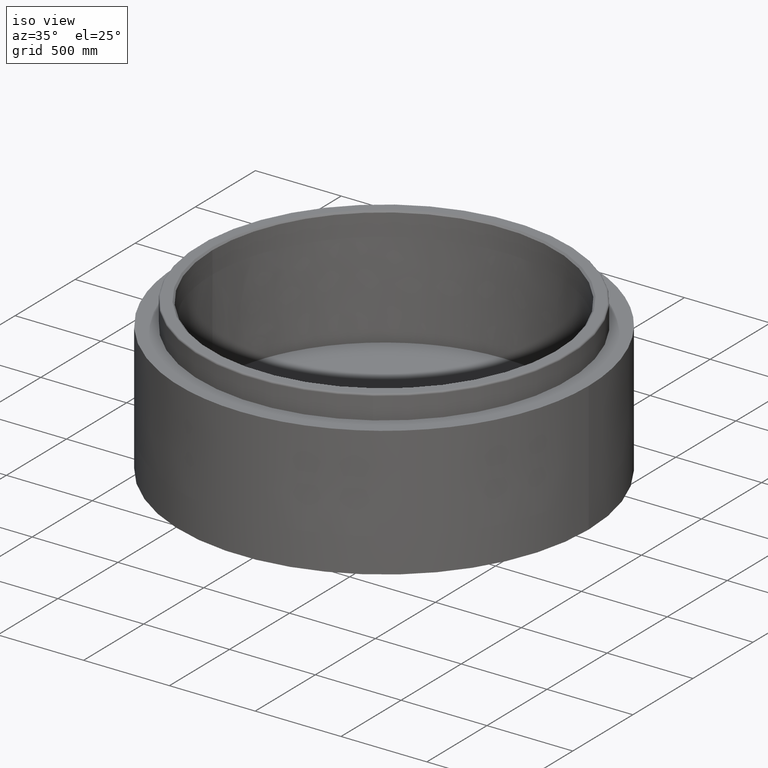
[diagram: clean part render]
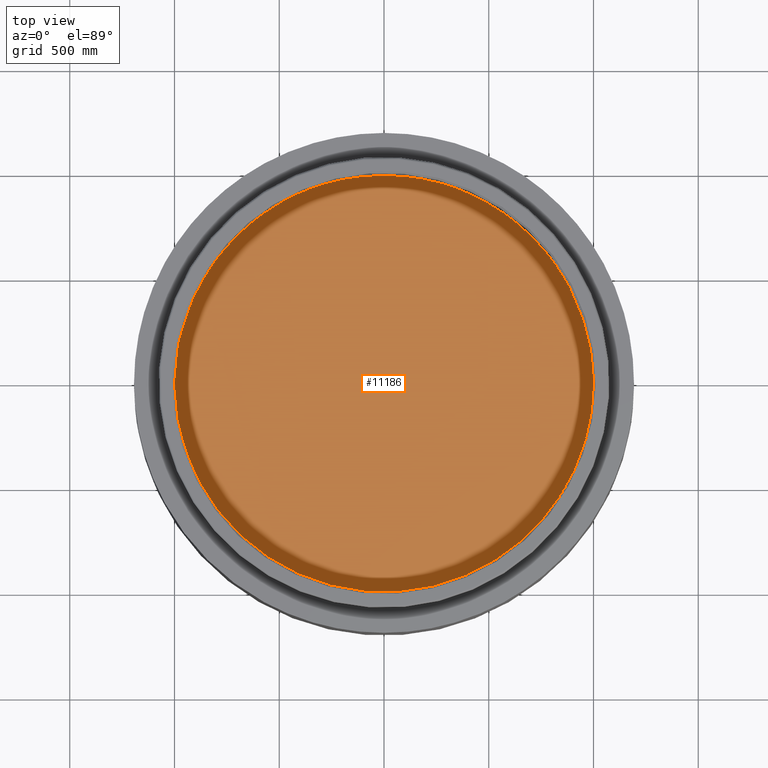
[diagram: tour spotlight — one face highlighted and labeled with its STEP entity id]
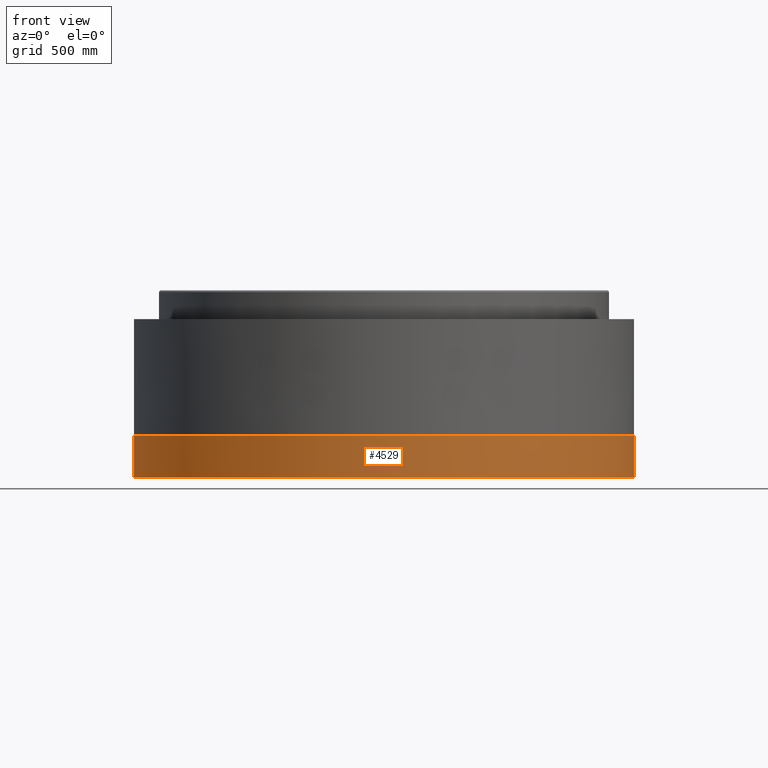
[diagram: tour spotlight — one face highlighted and labeled with its STEP entity id]
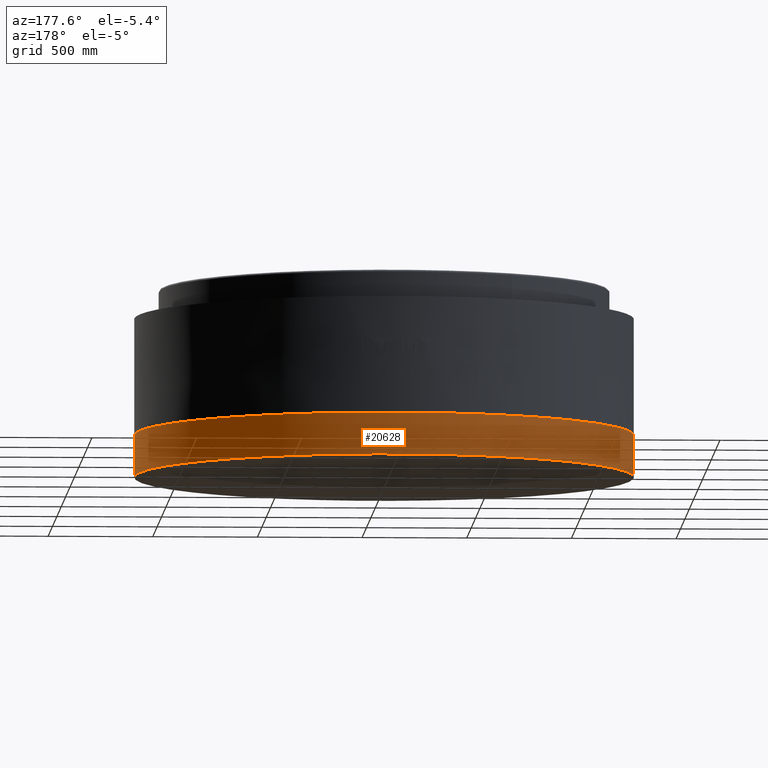
[diagram: tour spotlight — one face highlighted and labeled with its STEP entity id]
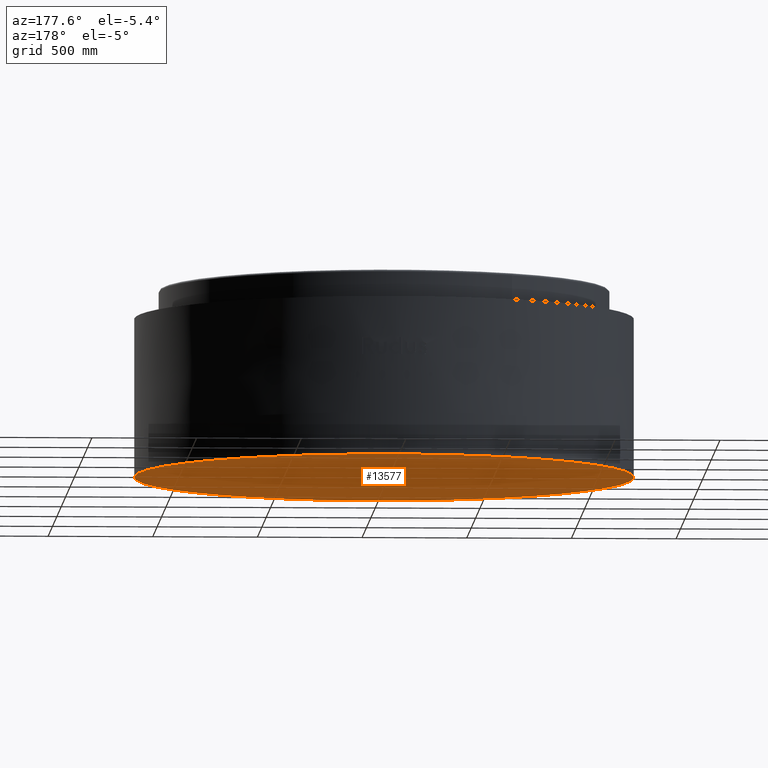
[diagram: tour spotlight — one face highlighted and labeled with its STEP entity id]
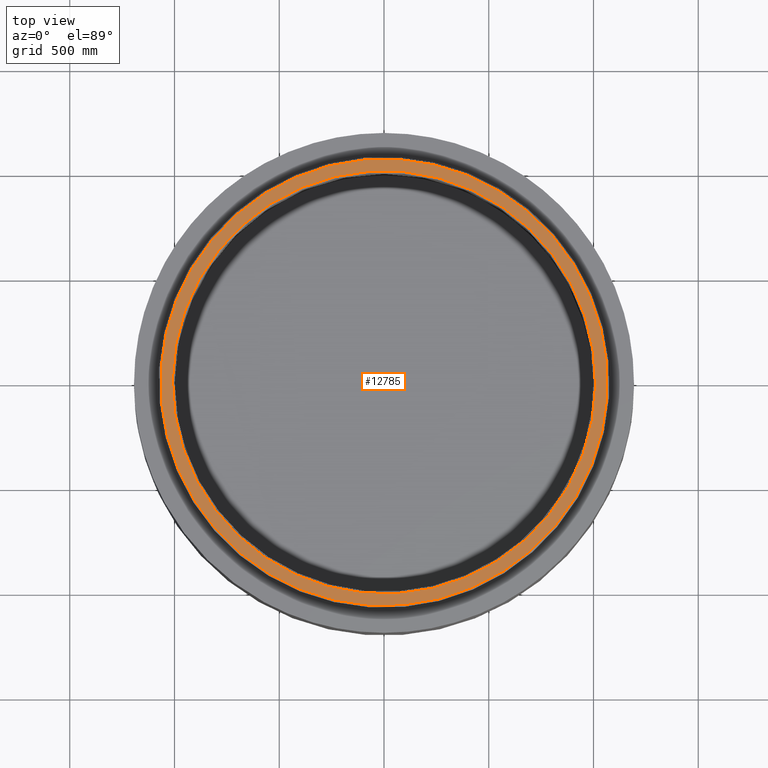
[diagram: tour spotlight — one face highlighted and labeled with its STEP entity id]
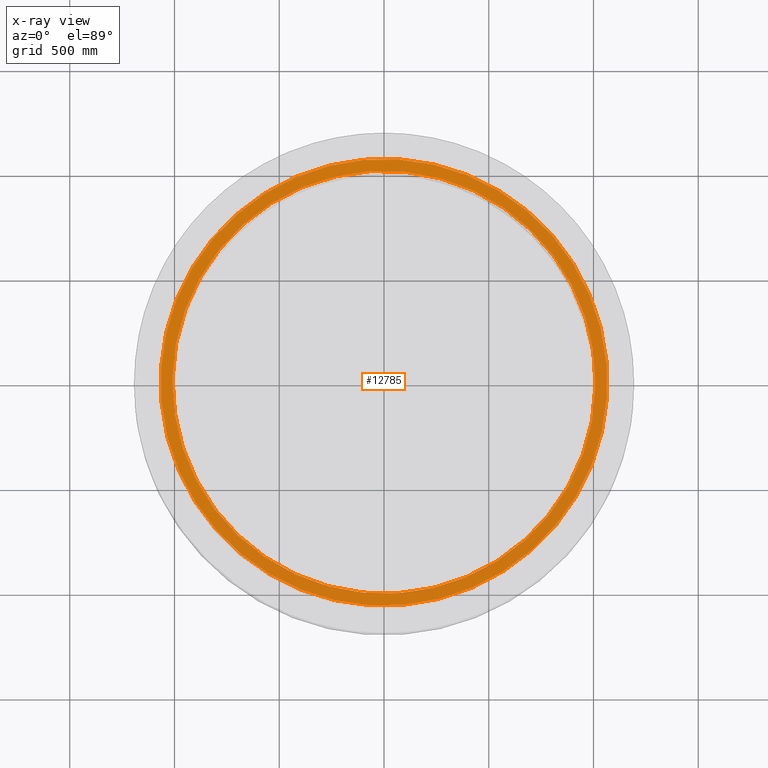
[diagram: x-ray of the same camera — body ghosted, this tour face saturated]
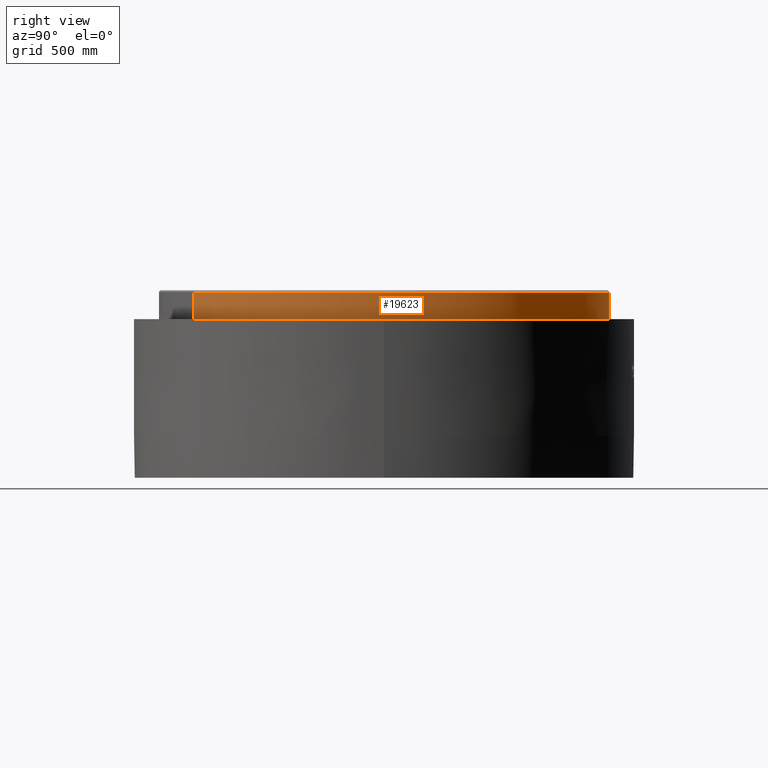
[diagram: tour spotlight — one face highlighted and labeled with its STEP entity id]
A machine part: a face-by-face anatomy tour. The part has 95 B-rep faces; the first image is the clean iso view, then the 6 largest visible faces are spotlighted one at a time (largest first), each with its STEP entity span.

Face 1 — top view, entity #11186. In plain terms, the highlighted planar face has unit normal (0, 0, 1).
Definition (entity closure, byte-faithful):
#22 = CARTESIAN_POINT ( 'NONE',  ( -707.1067811865477779, -707.1067811865472095, 0.0000000000000000000 ) ) ;
#29 = ORIENTED_EDGE ( 'NONE', *, *, #140, .T. ) ;
#67 = AXIS2_PLACEMENT_3D ( 'NONE', #11105, #19419, #21438 ) ;
#140 = EDGE_CURVE ( 'NONE', #17331, #9277, #15268, .T. ) ;
#194 = AXIS2_PLACEMENT_3D ( 'NONE', #8429, #16869, #20134 ) ;
#304 = CARTESIAN_POINT ( 'NONE',  ( -3.330669073875469621E-13, -1000.000000000000000, 0.0000000000000000000 ) ) ;
#353 = CARTESIAN_POINT ( 'NONE',  ( 0.0000000000000000000, 0.0000000000000000000, 0.0000000000000000000 ) ) ;
#364 = ORIENTED_EDGE ( 'NONE', *, *, #12368, .T. ) ;
#448 = DIRECTION ( 'NONE',  ( 1.000000000000000000, 0.0000000000000000000, 0.0000000000000000000 ) ) ;
#453 = CIRCLE ( 'NONE', #67, 1000.000000000000000 ) ;
#564 = EDGE_CURVE ( 'NONE', #2163, #13563, #20674, .T. ) ;
#764 = DIRECTION ( 'NONE',  ( 1.000000000000000000, 0.0000000000000000000, 0.0000000000000000000 ) ) ;
#934 = AXIS2_PLACEMENT_3D ( 'NONE', #19990, #14412, #21271 ) ;
#1136 = CARTESIAN_POINT ( 'NONE',  ( 707.1067811865472095, -707.1067811865476642, 0.0000000000000000000 ) ) ;
#1171 = AXIS2_PLACEMENT_3D ( 'NONE', #9299, #9183, #764 ) ;
#1222 = CARTESIAN_POINT ( 'NONE',  ( 479.1394124904915088, -877.7388231622908279, 0.0000000000000000000 ) ) ;
#1229 = DIRECTION ( 'NONE',  ( 1.000000000000000000, 0.0000000000000000000, 0.0000000000000000000 ) ) ;
#1387 = ORIENTED_EDGE ( 'NONE', *, *, #16654, .T. ) ;
#1597 = CARTESIAN_POINT ( 'NONE',  ( 281.8523465593186756, -959.4578026690113575, 0.0000000000000000000 ) ) ;
#1611 = ORIENTED_EDGE ( 'NONE', *, *, #13750, .T. ) ;
#1755 = VERTEX_POINT ( 'NONE', #3566 ) ;
#1812 = DIRECTION ( 'NONE',  ( 1.000000000000000000, 0.0000000000000000000, 0.0000000000000000000 ) ) ;
#2163 = VERTEX_POINT ( 'NONE', #304 ) ;
#2254 = CIRCLE ( 'NONE', #11215, 1000.000000000000000 ) ;
#2437 = VERTEX_POINT ( 'NONE', #8159 ) ;
#2485 = CARTESIAN_POINT ( 'NONE',  ( 0.0000000000000000000, 0.0000000000000000000, 0.0000000000000000000 ) ) ;
#2612 = AXIS2_PLACEMENT_3D ( 'NONE', #16334, #18244, #7785 ) ;
#2765 = DIRECTION ( 'NONE',  ( 0.0000000000000000000, 0.0000000000000000000, 1.000000000000000000 ) ) ;
#2772 = ORIENTED_EDGE ( 'NONE', *, *, #18858, .T. ) ;
#2861 = DIRECTION ( 'NONE',  ( 0.0000000000000000000, 0.0000000000000000000, 1.000000000000000000 ) ) ;
#2873 = ORIENTED_EDGE ( 'NONE', *, *, #8627, .T. ) ;
#2926 = CARTESIAN_POINT ( 'NONE',  ( -959.4578026600182739, -281.8523465897415576, 0.0000000000000000000 ) ) ;
#2934 = CIRCLE ( 'NONE', #15453, 1000.000000000000000 ) ;
#2967 = CARTESIAN_POINT ( 'NONE',  ( 0.0000000000000000000, 0.0000000000000000000, 0.0000000000000000000 ) ) ;
#3438 = CIRCLE ( 'NONE', #17807, 1000.000000000000000 ) ;
#3457 = DIRECTION ( 'NONE',  ( 1.000000000000000000, 0.0000000000000000000, 0.0000000000000000000 ) ) ;
#3566 = CARTESIAN_POINT ( 'NONE',  ( -959.4578016754024929, 281.8523462602058771, 0.0000000000000000000 ) ) ;
#3637 = ORIENTED_EDGE ( 'NONE', *, *, #564, .T. ) ;
#3854 = EDGE_LOOP ( 'NONE', ( #13952, #19349, #5900, #1611, #5557, #7090, #364, #1387, #21249, #17284, #2772, #15890, #10591, #29, #16548, #19575, #12496, #20975, #18116, #3637, #2873, #8131, #7201, #10034 ) ) ;
#3920 = VERTEX_POINT ( 'NONE', #1136 ) ;
#4136 = CARTESIAN_POINT ( 'NONE',  ( 0.0000000000000000000, 0.0000000000000000000, 0.0000000000000000000 ) ) ;
#4332 = VERTEX_POINT ( 'NONE', #13774 ) ;
#4396 = CARTESIAN_POINT ( 'NONE',  ( 281.8523462707589715, 959.4578016722422262, 0.0000000000000000000 ) ) ;
#4412 = EDGE_CURVE ( 'NONE', #9277, #7889, #15973, .T. ) ;
#4515 = CIRCLE ( 'NONE', #7374, 1000.000000000000000 ) ;
#4535 = DIRECTION ( 'NONE',  ( 1.000000000000000000, 0.0000000000000000000, 0.0000000000000000000 ) ) ;
#4569 = CARTESIAN_POINT ( 'NONE',  ( 479.1394129846663077, 877.7388240747017107, 0.0000000000000000000 ) ) ;
#4701 = DIRECTION ( 'NONE',  ( 0.0000000000000000000, 0.0000000000000000000, 1.000000000000000000 ) ) ;
#4810 = CARTESIAN_POINT ( 'NONE',  ( -877.7388231621146133, -479.1394124908899812, 0.0000000000000000000 ) ) ;
#4844 = PLANE ( 'NONE',  #5202 ) ;
#4865 = CIRCLE ( 'NONE', #20657, 1000.000000000000000 ) ;
#4956 = DIRECTION ( 'NONE',  ( 0.0000000000000000000, 0.0000000000000000000, 1.000000000000000000 ) ) ;
#5202 = AXIS2_PLACEMENT_3D ( 'NONE', #8318, #4956, #18671 ) ;
#5557 = ORIENTED_EDGE ( 'NONE', *, *, #17632, .T. ) ;
#5710 = DIRECTION ( 'NONE',  ( 1.000000000000000000, 0.0000000000000000000, 0.0000000000000000000 ) ) ;
#5750 = VERTEX_POINT ( 'NONE', #16476 ) ;
#5870 = DIRECTION ( 'NONE',  ( 1.000000000000000000, 0.0000000000000000000, 0.0000000000000000000 ) ) ;
#5900 = ORIENTED_EDGE ( 'NONE', *, *, #11139, .T. ) ;
#5915 = CARTESIAN_POINT ( 'NONE',  ( 0.0000000000000000000, 0.0000000000000000000, 0.0000000000000000000 ) ) ;
#6304 = AXIS2_PLACEMENT_3D ( 'NONE', #6940, #10328, #448 ) ;
#6496 = AXIS2_PLACEMENT_3D ( 'NONE', #21622, #14770, #16458 ) ;
#6636 = CARTESIAN_POINT ( 'NONE',  ( 0.0000000000000000000, 0.0000000000000000000, 0.0000000000000000000 ) ) ;
#6639 = AXIS2_PLACEMENT_3D ( 'NONE', #10678, #15829, #6943 ) ;
#6940 = CARTESIAN_POINT ( 'NONE',  ( 0.0000000000000000000, 0.0000000000000000000, 0.0000000000000000000 ) ) ;
#6943 = DIRECTION ( 'NONE',  ( 1.000000000000000000, 0.0000000000000000000, 0.0000000000000000000 ) ) ;
#7031 = AXIS2_PLACEMENT_3D ( 'NONE', #12680, #21547, #5710 ) ;
#7079 = DIRECTION ( 'NONE',  ( 0.0000000000000000000, 0.0000000000000000000, 1.000000000000000000 ) ) ;
#7090 = ORIENTED_EDGE ( 'NONE', *, *, #14993, .T. ) ;
#7201 = ORIENTED_EDGE ( 'NONE', *, *, #16532, .T. ) ;
#7308 = EDGE_CURVE ( 'NONE', #1755, #17331, #7731, .T. ) ;
#7374 = AXIS2_PLACEMENT_3D ( 'NONE', #17587, #9152, #20953 ) ;
#7521 = DIRECTION ( 'NONE',  ( 1.000000000000000000, 0.0000000000000000000, 0.0000000000000000000 ) ) ;
#7526 = CARTESIAN_POINT ( 'NONE',  ( 0.0000000000000000000, 0.0000000000000000000, 0.0000000000000000000 ) ) ;
#7635 = DIRECTION ( 'NONE',  ( 0.0000000000000000000, 0.0000000000000000000, 1.000000000000000000 ) ) ;
#7731 = CIRCLE ( 'NONE', #20276, 1000.000000000000000 ) ;
#7773 = DIRECTION ( 'NONE',  ( 0.0000000000000000000, 0.0000000000000000000, 1.000000000000000000 ) ) ;
#7785 = DIRECTION ( 'NONE',  ( 1.000000000000000000, 0.0000000000000000000, 0.0000000000000000000 ) ) ;
#7889 = VERTEX_POINT ( 'NONE', #4810 ) ;
#8131 = ORIENTED_EDGE ( 'NONE', *, *, #21946, .T. ) ;
#8159 = CARTESIAN_POINT ( 'NONE',  ( 707.1067811865476642, 707.1067811865476642, 0.0000000000000000000 ) ) ;
#8318 = CARTESIAN_POINT ( 'NONE',  ( 0.0000000000000000000, 0.0000000000000000000, 0.0000000000000000000 ) ) ;
#8429 = CARTESIAN_POINT ( 'NONE',  ( 0.0000000000000000000, 0.0000000000000000000, 0.0000000000000000000 ) ) ;
#8627 = EDGE_CURVE ( 'NONE', #13563, #19837, #4865, .T. ) ;
#8802 = CIRCLE ( 'NONE', #15994, 1000.000000000000000 ) ;
#8894 = VERTEX_POINT ( 'NONE', #4569 ) ;
#9060 = VERTEX_POINT ( 'NONE', #9275 ) ;
#9104 = CARTESIAN_POINT ( 'NONE',  ( 1.110223024625156540E-13, 1000.000000000000000, 0.0000000000000000000 ) ) ;
#9152 = DIRECTION ( 'NONE',  ( 0.0000000000000000000, 0.0000000000000000000, 1.000000000000000000 ) ) ;
#9183 = DIRECTION ( 'NONE',  ( 0.0000000000000000000, 0.0000000000000000000, 1.000000000000000000 ) ) ;
#9275 = CARTESIAN_POINT ( 'NONE',  ( -281.8523466009128242, 959.4578026567523921, 0.0000000000000000000 ) ) ;
#9277 = VERTEX_POINT ( 'NONE', #2926 ) ;
#9299 = CARTESIAN_POINT ( 'NONE',  ( 0.0000000000000000000, 0.0000000000000000000, 0.0000000000000000000 ) ) ;
#9464 = VERTEX_POINT ( 'NONE', #21159 ) ;
#9488 = EDGE_CURVE ( 'NONE', #10256, #10244, #3438, .T. ) ;
#9656 = DIRECTION ( 'NONE',  ( 1.000000000000000000, 0.0000000000000000000, 0.0000000000000000000 ) ) ;
#9883 = CIRCLE ( 'NONE', #18155, 1000.000000000000000 ) ;
#9894 = CARTESIAN_POINT ( 'NONE',  ( 0.0000000000000000000, 0.0000000000000000000, 0.0000000000000000000 ) ) ;
#9929 = EDGE_CURVE ( 'NONE', #9060, #10256, #19943, .T. ) ;
#10019 = DIRECTION ( 'NONE',  ( 0.0000000000000000000, 0.0000000000000000000, 1.000000000000000000 ) ) ;
#10034 = ORIENTED_EDGE ( 'NONE', *, *, #18314, .T. ) ;
#10104 = CARTESIAN_POINT ( 'NONE',  ( -479.1394129716226757, -877.7388240818810345, 0.0000000000000000000 ) ) ;
#10244 = VERTEX_POINT ( 'NONE', #20588 ) ;
#10256 = VERTEX_POINT ( 'NONE', #20821 ) ;
#10275 = AXIS2_PLACEMENT_3D ( 'NONE', #4136, #19526, #10994 ) ;
#10328 = DIRECTION ( 'NONE',  ( 0.0000000000000000000, 0.0000000000000000000, 1.000000000000000000 ) ) ;
#10466 = CARTESIAN_POINT ( 'NONE',  ( 1000.000000000000000, 0.0000000000000000000, 0.0000000000000000000 ) ) ;
#10591 = ORIENTED_EDGE ( 'NONE', *, *, #7308, .T. ) ;
#10678 = CARTESIAN_POINT ( 'NONE',  ( 0.0000000000000000000, 0.0000000000000000000, 0.0000000000000000000 ) ) ;
#10908 = EDGE_CURVE ( 'NONE', #16465, #11292, #20638, .T. ) ;
#10994 = DIRECTION ( 'NONE',  ( 1.000000000000000000, 0.0000000000000000000, 0.0000000000000000000 ) ) ;
#11006 = AXIS2_PLACEMENT_3D ( 'NONE', #15821, #19537, #12342 ) ;
#11036 = EDGE_CURVE ( 'NONE', #11938, #16465, #9883, .T. ) ;
#11105 = CARTESIAN_POINT ( 'NONE',  ( 0.0000000000000000000, 0.0000000000000000000, 0.0000000000000000000 ) ) ;
#11130 = DIRECTION ( 'NONE',  ( 0.0000000000000000000, 0.0000000000000000000, 1.000000000000000000 ) ) ;
#11139 = EDGE_CURVE ( 'NONE', #11292, #4332, #17067, .T. ) ;
#11186 = ADVANCED_FACE ( 'NONE', ( #20351 ), #4844, .T. ) ;
#11215 = AXIS2_PLACEMENT_3D ( 'NONE', #9894, #11975, #3457 ) ;
#11292 = VERTEX_POINT ( 'NONE', #11913 ) ;
#11293 = CARTESIAN_POINT ( 'NONE',  ( 0.0000000000000000000, 0.0000000000000000000, 0.0000000000000000000 ) ) ;
#11403 = VERTEX_POINT ( 'NONE', #4396 ) ;
#11404 = DIRECTION ( 'NONE',  ( 1.000000000000000000, 0.0000000000000000000, 0.0000000000000000000 ) ) ;
#11495 = CARTESIAN_POINT ( 'NONE',  ( 0.0000000000000000000, 0.0000000000000000000, 0.0000000000000000000 ) ) ;
#11527 = CIRCLE ( 'NONE', #6496, 1000.000000000000000 ) ;
#11534 = EDGE_CURVE ( 'NONE', #15903, #20155, #12016, .T. ) ;
#11557 = CIRCLE ( 'NONE', #1171, 1000.000000000000000 ) ;
#11673 = AXIS2_PLACEMENT_3D ( 'NONE', #353, #7079, #1812 ) ;
#11913 = CARTESIAN_POINT ( 'NONE',  ( 959.4578026637536823, 281.8523465769506515, 0.0000000000000000000 ) ) ;
#11938 = VERTEX_POINT ( 'NONE', #20712 ) ;
#11975 = DIRECTION ( 'NONE',  ( 0.0000000000000000000, 0.0000000000000000000, 1.000000000000000000 ) ) ;
#12016 = CIRCLE ( 'NONE', #6639, 1000.000000000000000 ) ;
#12025 = DIRECTION ( 'NONE',  ( 1.000000000000000000, 0.0000000000000000000, 0.0000000000000000000 ) ) ;
#12342 = DIRECTION ( 'NONE',  ( 1.000000000000000000, 0.0000000000000000000, 0.0000000000000000000 ) ) ;
#12368 = EDGE_CURVE ( 'NONE', #11403, #18964, #13124, .T. ) ;
#12496 = ORIENTED_EDGE ( 'NONE', *, *, #18138, .T. ) ;
#12680 = CARTESIAN_POINT ( 'NONE',  ( 0.0000000000000000000, 0.0000000000000000000, 0.0000000000000000000 ) ) ;
#12804 = EDGE_CURVE ( 'NONE', #9464, #1755, #15252, .T. ) ;
#13053 = CARTESIAN_POINT ( 'NONE',  ( 0.0000000000000000000, 0.0000000000000000000, 0.0000000000000000000 ) ) ;
#13124 = CIRCLE ( 'NONE', #11673, 1000.000000000000000 ) ;
#13494 = DIRECTION ( 'NONE',  ( 1.000000000000000000, 0.0000000000000000000, 0.0000000000000000000 ) ) ;
#13563 = VERTEX_POINT ( 'NONE', #1597 ) ;
#13661 = AXIS2_PLACEMENT_3D ( 'NONE', #11293, #2765, #11404 ) ;
#13750 = EDGE_CURVE ( 'NONE', #4332, #2437, #8802, .T. ) ;
#13774 = CARTESIAN_POINT ( 'NONE',  ( 877.7388231612242180, 479.1394124923798472, 0.0000000000000000000 ) ) ;
#13822 = AXIS2_PLACEMENT_3D ( 'NONE', #5915, #10019, #12025 ) ;
#13952 = ORIENTED_EDGE ( 'NONE', *, *, #11036, .T. ) ;
#14387 = DIRECTION ( 'NONE',  ( 1.000000000000000000, 0.0000000000000000000, 0.0000000000000000000 ) ) ;
#14412 = DIRECTION ( 'NONE',  ( 0.0000000000000000000, 0.0000000000000000000, 1.000000000000000000 ) ) ;
#14770 = DIRECTION ( 'NONE',  ( 0.0000000000000000000, 0.0000000000000000000, 1.000000000000000000 ) ) ;
#14861 = DIRECTION ( 'NONE',  ( 0.0000000000000000000, 0.0000000000000000000, 1.000000000000000000 ) ) ;
#14967 = DIRECTION ( 'NONE',  ( 1.000000000000000000, 0.0000000000000000000, 0.0000000000000000000 ) ) ;
#14993 = EDGE_CURVE ( 'NONE', #8894, #11403, #4515, .T. ) ;
#15252 = CIRCLE ( 'NONE', #6304, 1000.000000000000000 ) ;
#15268 = CIRCLE ( 'NONE', #11006, 1000.000000000000000 ) ;
#15453 = AXIS2_PLACEMENT_3D ( 'NONE', #2485, #7635, #7521 ) ;
#15821 = CARTESIAN_POINT ( 'NONE',  ( 0.0000000000000000000, 0.0000000000000000000, 0.0000000000000000000 ) ) ;
#15829 = DIRECTION ( 'NONE',  ( 0.0000000000000000000, 0.0000000000000000000, 1.000000000000000000 ) ) ;
#15890 = ORIENTED_EDGE ( 'NONE', *, *, #12804, .T. ) ;
#15903 = VERTEX_POINT ( 'NONE', #10104 ) ;
#15973 = CIRCLE ( 'NONE', #10275, 1000.000000000000000 ) ;
#15994 = AXIS2_PLACEMENT_3D ( 'NONE', #13053, #7773, #5870 ) ;
#16102 = EDGE_CURVE ( 'NONE', #7889, #19164, #17682, .T. ) ;
#16334 = CARTESIAN_POINT ( 'NONE',  ( 0.0000000000000000000, 0.0000000000000000000, 0.0000000000000000000 ) ) ;
#16458 = DIRECTION ( 'NONE',  ( 1.000000000000000000, 0.0000000000000000000, 0.0000000000000000000 ) ) ;
#16465 = VERTEX_POINT ( 'NONE', #10466 ) ;
#16476 = CARTESIAN_POINT ( 'NONE',  ( 877.7388241656676655, -479.1394128179790641, 0.0000000000000000000 ) ) ;
#16504 = CARTESIAN_POINT ( 'NONE',  ( 0.0000000000000000000, 0.0000000000000000000, 0.0000000000000000000 ) ) ;
#16532 = EDGE_CURVE ( 'NONE', #3920, #5750, #2254, .T. ) ;
#16548 = ORIENTED_EDGE ( 'NONE', *, *, #4412, .T. ) ;
#16557 = CARTESIAN_POINT ( 'NONE',  ( -281.8523462619987185, -959.4578016748433811, 0.0000000000000000000 ) ) ;
#16654 = EDGE_CURVE ( 'NONE', #18964, #9060, #11557, .T. ) ;
#16869 = DIRECTION ( 'NONE',  ( 0.0000000000000000000, 0.0000000000000000000, 1.000000000000000000 ) ) ;
#17067 = CIRCLE ( 'NONE', #194, 1000.000000000000000 ) ;
#17284 = ORIENTED_EDGE ( 'NONE', *, *, #9488, .T. ) ;
#17331 = VERTEX_POINT ( 'NONE', #21332 ) ;
#17587 = CARTESIAN_POINT ( 'NONE',  ( 0.0000000000000000000, 0.0000000000000000000, 0.0000000000000000000 ) ) ;
#17632 = EDGE_CURVE ( 'NONE', #2437, #8894, #453, .T. ) ;
#17682 = CIRCLE ( 'NONE', #2612, 1000.000000000000000 ) ;
#17807 = AXIS2_PLACEMENT_3D ( 'NONE', #19468, #4701, #1229 ) ;
#18022 = AXIS2_PLACEMENT_3D ( 'NONE', #11495, #2861, #14967 ) ;
#18116 = ORIENTED_EDGE ( 'NONE', *, *, #21867, .T. ) ;
#18138 = EDGE_CURVE ( 'NONE', #19164, #15903, #19794, .T. ) ;
#18155 = AXIS2_PLACEMENT_3D ( 'NONE', #6636, #20239, #13494 ) ;
#18198 = DIRECTION ( 'NONE',  ( 0.0000000000000000000, 0.0000000000000000000, 1.000000000000000000 ) ) ;
#18244 = DIRECTION ( 'NONE',  ( 0.0000000000000000000, 0.0000000000000000000, 1.000000000000000000 ) ) ;
#18314 = EDGE_CURVE ( 'NONE', #5750, #11938, #11527, .T. ) ;
#18671 = DIRECTION ( 'NONE',  ( 1.000000000000000000, 0.0000000000000000000, -0.0000000000000000000 ) ) ;
#18711 = CIRCLE ( 'NONE', #20485, 1000.000000000000000 ) ;
#18858 = EDGE_CURVE ( 'NONE', #10244, #9464, #2934, .T. ) ;
#18964 = VERTEX_POINT ( 'NONE', #9104 ) ;
#19164 = VERTEX_POINT ( 'NONE', #22 ) ;
#19349 = ORIENTED_EDGE ( 'NONE', *, *, #10908, .T. ) ;
#19419 = DIRECTION ( 'NONE',  ( 0.0000000000000000000, 0.0000000000000000000, 1.000000000000000000 ) ) ;
#19468 = CARTESIAN_POINT ( 'NONE',  ( 0.0000000000000000000, 0.0000000000000000000, 0.0000000000000000000 ) ) ;
#19526 = DIRECTION ( 'NONE',  ( 0.0000000000000000000, 0.0000000000000000000, 1.000000000000000000 ) ) ;
#19537 = DIRECTION ( 'NONE',  ( 0.0000000000000000000, 0.0000000000000000000, 1.000000000000000000 ) ) ;
#19575 = ORIENTED_EDGE ( 'NONE', *, *, #16102, .T. ) ;
#19794 = CIRCLE ( 'NONE', #13661, 1000.000000000000000 ) ;
#19837 = VERTEX_POINT ( 'NONE', #1222 ) ;
#19943 = CIRCLE ( 'NONE', #934, 1000.000000000000000 ) ;
#19990 = CARTESIAN_POINT ( 'NONE',  ( 0.0000000000000000000, 0.0000000000000000000, 0.0000000000000000000 ) ) ;
#20134 = DIRECTION ( 'NONE',  ( 1.000000000000000000, 0.0000000000000000000, 0.0000000000000000000 ) ) ;
#20155 = VERTEX_POINT ( 'NONE', #16557 ) ;
#20239 = DIRECTION ( 'NONE',  ( 0.0000000000000000000, 0.0000000000000000000, 1.000000000000000000 ) ) ;
#20276 = AXIS2_PLACEMENT_3D ( 'NONE', #7526, #11130, #14387 ) ;
#20351 = FACE_OUTER_BOUND ( 'NONE', #3854, .T. ) ;
#20485 = AXIS2_PLACEMENT_3D ( 'NONE', #2967, #14861, #4535 ) ;
#20588 = CARTESIAN_POINT ( 'NONE',  ( -707.1067811865474368, 707.1067811865476642, 0.0000000000000000000 ) ) ;
#20638 = CIRCLE ( 'NONE', #13822, 1000.000000000000000 ) ;
#20657 = AXIS2_PLACEMENT_3D ( 'NONE', #16504, #18198, #9656 ) ;
#20674 = CIRCLE ( 'NONE', #7031, 1000.000000000000000 ) ;
#20712 = CARTESIAN_POINT ( 'NONE',  ( 959.4578016736503514, -281.8523462660600671, 0.0000000000000000000 ) ) ;
#20821 = CARTESIAN_POINT ( 'NONE',  ( -479.1394124842601627, 877.7388231656404969, 0.0000000000000000000 ) ) ;
#20953 = DIRECTION ( 'NONE',  ( 1.000000000000000000, 0.0000000000000000000, 0.0000000000000000000 ) ) ;
#20975 = ORIENTED_EDGE ( 'NONE', *, *, #11534, .T. ) ;
#21159 = CARTESIAN_POINT ( 'NONE',  ( -877.7388240722536921, 479.1394129891508555, 0.0000000000000000000 ) ) ;
#21249 = ORIENTED_EDGE ( 'NONE', *, *, #9929, .T. ) ;
#21271 = DIRECTION ( 'NONE',  ( 1.000000000000000000, 0.0000000000000000000, 0.0000000000000000000 ) ) ;
#21332 = CARTESIAN_POINT ( 'NONE',  ( -1000.000000000000000, 2.832769448823989831E-13, 0.0000000000000000000 ) ) ;
#21438 = DIRECTION ( 'NONE',  ( 1.000000000000000000, 0.0000000000000000000, 0.0000000000000000000 ) ) ;
#21547 = DIRECTION ( 'NONE',  ( 0.0000000000000000000, 0.0000000000000000000, 1.000000000000000000 ) ) ;
#21622 = CARTESIAN_POINT ( 'NONE',  ( 0.0000000000000000000, 0.0000000000000000000, 0.0000000000000000000 ) ) ;
#21867 = EDGE_CURVE ( 'NONE', #20155, #2163, #18711, .T. ) ;
#21939 = CIRCLE ( 'NONE', #18022, 1000.000000000000000 ) ;
#21946 = EDGE_CURVE ( 'NONE', #19837, #3920, #21939, .T. ) ;

Face 2 — front view, entity #4529. In plain terms, the highlighted cylindrical surface (partial cylindrical patch) has radius 1193 mm, axis along (0, 0, 1).
Definition (entity closure, byte-faithful):
#6 = CARTESIAN_POINT ( 'NONE',  ( 466.3464655845115203, -1098.086278104888834, 0.0000000000000000000 ) ) ;
#18 = VERTEX_POINT ( 'NONE', #21172 ) ;
#20 = CARTESIAN_POINT ( 'NONE',  ( -336.2530333695491436, -1144.632210602941768, 0.0000000000000000000 ) ) ;
#100 = CARTESIAN_POINT ( 'NONE',  ( 1047.143998278743311, -571.6103977962681029, 0.0000000000000000000 ) ) ;
#259 = ORIENTED_EDGE ( 'NONE', *, *, #8484, .F. ) ;
#397 = ORIENTED_EDGE ( 'NONE', *, *, #19400, .F. ) ;
#529 = CARTESIAN_POINT ( 'NONE',  ( 1094.235462105335500, -475.7554648946928637, -1.599578441921814520E-13 ) ) ;
#552 = EDGE_CURVE ( 'NONE', #11192, #19687, #12049, .T. ) ;
#665 = DIRECTION ( 'NONE',  ( 0.0000000000000000000, 0.0000000000000000000, 1.000000000000000000 ) ) ;
#824 = LINE ( 'NONE', #9769, #19941 ) ;
#840 = CARTESIAN_POINT ( 'NONE',  ( -377.2030325981388046, -1131.997591810013773, -0.0000000000000000000 ) ) ;
#855 = ORIENTED_EDGE ( 'NONE', *, *, #1016, .F. ) ;
#868 = CARTESIAN_POINT ( 'NONE',  ( 1085.582050392298925, -495.1878347171463588, 3.286920438420870565E-29 ) ) ;
#1016 = EDGE_CURVE ( 'NONE', #3808, #2840, #17266, .T. ) ;
#1039 = CARTESIAN_POINT ( 'NONE',  ( -1085.263118598301162, -495.8805301117492377, 0.0000000000000000000 ) ) ;
#1243 = EDGE_CURVE ( 'NONE', #13148, #3808, #4531, .T. ) ;
#1368 = CARTESIAN_POINT ( 'NONE',  ( 505.3643933993012638, -1080.724204289678937, 0.0000000000000000000 ) ) ;
#1464 = CARTESIAN_POINT ( 'NONE',  ( -1144.632210600924736, -336.2530333764154307, 0.0000000000000000000 ) ) ;
#1479 = AXIS2_PLACEMENT_3D ( 'NONE', #2702, #14495, #4267 ) ;
#1674 = DIRECTION ( 'NONE',  ( 0.0000000000000000000, 0.0000000000000000000, 1.000000000000000000 ) ) ;
#1722 = CARTESIAN_POINT ( 'NONE',  ( 1193.000000000000227, 0.0000000000000000000, -200.0000000000000000 ) ) ;
#1840 = AXIS2_PLACEMENT_3D ( 'NONE', #11558, #13454, #8067 ) ;
#1999 = AXIS2_PLACEMENT_3D ( 'NONE', #16433, #13169, #13273 ) ;
#2217 = CARTESIAN_POINT ( 'NONE',  ( 0.0000000000000000000, 0.0000000000000000000, 0.0000000000000000000 ) ) ;
#2220 = CARTESIAN_POINT ( 'NONE',  ( 0.0000000000000000000, 0.0000000000000000000, 0.0000000000000000000 ) ) ;
#2261 = EDGE_CURVE ( 'NONE', #20943, #6706, #18529, .T. ) ;
#2362 = AXIS2_PLACEMENT_3D ( 'NONE', #14471, #19639, #21329 ) ;
#2531 = CARTESIAN_POINT ( 'NONE',  ( -552.9743869253608182, -1057.316244604973690, 0.0000000000000000000 ) ) ;
#2577 = LINE ( 'NONE', #21542, #3089 ) ;
#2702 = CARTESIAN_POINT ( 'NONE',  ( 0.0000000000000000000, 0.0000000000000000000, 0.0000000000000000000 ) ) ;
#2804 = DIRECTION ( 'NONE',  ( 0.0000000000000000000, 0.0000000000000000000, 1.000000000000000000 ) ) ;
#2840 = VERTEX_POINT ( 'NONE', #21626 ) ;
#2966 = CARTESIAN_POINT ( 'NONE',  ( -437.2605615845124589, -1110.179136666189834, -0.0000000000000000000 ) ) ;
#3089 = VECTOR ( 'NONE', #665, 1000.000000000000000 ) ;
#3385 = CARTESIAN_POINT ( 'NONE',  ( 461.4095963536012732, -1100.169838140987395, -0.0000000000000000000 ) ) ;
#3445 = EDGE_CURVE ( 'NONE', #12717, #6017, #15331, .T. ) ;
#3575 = EDGE_CURVE ( 'NONE', #6017, #18, #16693, .T. ) ;
#3808 = VERTEX_POINT ( 'NONE', #4336 ) ;
#4009 = ORIENTED_EDGE ( 'NONE', *, *, #10757, .F. ) ;
#4229 = DIRECTION ( 'NONE',  ( 0.0000000000000000000, 0.0000000000000000000, 1.000000000000000000 ) ) ;
#4267 = DIRECTION ( 'NONE',  ( 1.000000000000000000, 0.0000000000000000000, 0.0000000000000000000 ) ) ;
#4336 = CARTESIAN_POINT ( 'NONE',  ( -1144.632210600924736, -336.2530333764154307, 0.0000000000000000000 ) ) ;
#4529 = ADVANCED_FACE ( 'NONE', ( #21219 ), #12669, .T. ) ;
#4531 = CIRCLE ( 'NONE', #15645, 1193.000000000000227 ) ;
#4588 = CARTESIAN_POINT ( 'NONE',  ( 0.0000000000000000000, 0.0000000000000000000, 0.0000000000000000000 ) ) ;
#4761 = ORIENTED_EDGE ( 'NONE', *, *, #1243, .F. ) ;
#4861 = ORIENTED_EDGE ( 'NONE', *, *, #9331, .F. ) ;
#5791 = CIRCLE ( 'NONE', #1479, 1193.000000000000227 ) ;
#5912 = CARTESIAN_POINT ( 'NONE',  ( 1118.048934774447616, -416.7251618597147740, -1.632568912645313286E-13 ) ) ;
#5917 = CARTESIAN_POINT ( 'NONE',  ( -1.313214502504839012E-10, -1193.000000000000227, 0.0000000000000000000 ) ) ;
#6017 = VERTEX_POINT ( 'NONE', #11262 ) ;
#6194 = CARTESIAN_POINT ( 'NONE',  ( -1057.309934515765690, -552.9859472915104561, -0.0000000000000000000 ) ) ;
#6322 = CARTESIAN_POINT ( 'NONE',  ( -534.0941786835838911, -1066.976598408782138, -0.0000000000000000000 ) ) ;
#6620 = CARTESIAN_POINT ( 'NONE',  ( -1138.575823559241144, -356.8672594279358918, -0.0000000000000000000 ) ) ;
#6706 = VERTEX_POINT ( 'NONE', #16968 ) ;
#7584 = ORIENTED_EDGE ( 'NONE', *, *, #3575, .F. ) ;
#7597 = CARTESIAN_POINT ( 'NONE',  ( 1110.468912292872119, -436.5241311970448237, -1.599578441921814268E-13 ) ) ;
#8067 = DIRECTION ( 'NONE',  ( 1.000000000000000000, 0.0000000000000000000, 0.0000000000000000000 ) ) ;
#8103 = EDGE_CURVE ( 'NONE', #19687, #18, #2577, .T. ) ;
#8210 = CARTESIAN_POINT ( 'NONE',  ( -356.8543190310375053, -1138.579625402426927, 0.0000000000000000000 ) ) ;
#8484 = EDGE_CURVE ( 'NONE', #13303, #20943, #17065, .T. ) ;
#8840 = AXIS2_PLACEMENT_3D ( 'NONE', #4588, #2804, #21768 ) ;
#8934 = CARTESIAN_POINT ( 'NONE',  ( 571.6103979927752334, -1047.143998171475005, 0.0000000000000000000 ) ) ;
#9124 = ORIENTED_EDGE ( 'NONE', *, *, #8103, .T. ) ;
#9331 = EDGE_CURVE ( 'NONE', #11192, #13148, #824, .T. ) ;
#9375 = CARTESIAN_POINT ( 'NONE',  ( -495.8476364240495968, -1085.278276139097670, -0.0000000000000000000 ) ) ;
#9405 = DIRECTION ( 'NONE',  ( 0.0000000000000000000, 0.0000000000000000000, 1.000000000000000000 ) ) ;
#9574 = AXIS2_PLACEMENT_3D ( 'NONE', #11328, #14802, #11218 ) ;
#9605 = EDGE_LOOP ( 'NONE', ( #4861, #11875, #9124, #7584, #12032, #4009, #12951, #259, #15445, #397, #15241, #21042, #855, #4761 ) ) ;
#9685 = CARTESIAN_POINT ( 'NONE',  ( -1110.164578084670211, -437.2975187053517061, 0.0000000000000000000 ) ) ;
#9769 = CARTESIAN_POINT ( 'NONE',  ( -1193.000000000000227, 1.461003631382792589E-13, -145.0000000000000000 ) ) ;
#9811 = CARTESIAN_POINT ( 'NONE',  ( -417.4061599282078419, -1117.797360131051391, 0.0000000000000000000 ) ) ;
#10231 = CARTESIAN_POINT ( 'NONE',  ( 495.6925977822185700, -1085.194582845657123, -0.0000000000000000000 ) ) ;
#10326 = DIRECTION ( 'NONE',  ( 1.000000000000000000, 0.0000000000000000000, 0.0000000000000000000 ) ) ;
#10609 = AXIS2_PLACEMENT_3D ( 'NONE', #2220, #9405, #16254 ) ;
#10757 = EDGE_CURVE ( 'NONE', #6706, #12717, #19576, .T. ) ;
#11192 = VERTEX_POINT ( 'NONE', #18561 ) ;
#11218 = DIRECTION ( 'NONE',  ( 1.000000000000000000, 0.0000000000000000000, 0.0000000000000000000 ) ) ;
#11262 = CARTESIAN_POINT ( 'NONE',  ( 1144.632210603990870, -336.2530333659789790, 0.0000000000000000000 ) ) ;
#11328 = CARTESIAN_POINT ( 'NONE',  ( 0.0000000000000000000, 0.0000000000000000000, -200.0000000000000000 ) ) ;
#11558 = CARTESIAN_POINT ( 'NONE',  ( 0.0000000000000000000, 0.0000000000000000000, 0.0000000000000000000 ) ) ;
#11589 = CARTESIAN_POINT ( 'NONE',  ( 336.2530334062400925, -1144.632210592163347, 0.0000000000000000000 ) ) ;
#11875 = ORIENTED_EDGE ( 'NONE', *, *, #552, .T. ) ;
#12032 = ORIENTED_EDGE ( 'NONE', *, *, #3445, .F. ) ;
#12049 = CIRCLE ( 'NONE', #9574, 1193.000000000000227 ) ;
#12546 = CARTESIAN_POINT ( 'NONE',  ( 1049.717341609208461, -566.8959175560257790, -4.146976551307811493E-14 ) ) ;
#12669 = CYLINDRICAL_SURFACE ( 'NONE', #2362, 1193.000000000000227 ) ;
#12717 = VERTEX_POINT ( 'NONE', #100 ) ;
#12766 = DIRECTION ( 'NONE',  ( 1.000000000000000000, 0.0000000000000000000, 0.0000000000000000000 ) ) ;
#12951 = ORIENTED_EDGE ( 'NONE', *, *, #2261, .F. ) ;
#13047 = CARTESIAN_POINT ( 'NONE',  ( -1047.143998163889819, -571.6103980066702661, 0.0000000000000000000 ) ) ;
#13148 = VERTEX_POINT ( 'NONE', #18359 ) ;
#13169 = DIRECTION ( 'NONE',  ( 0.0000000000000000000, 0.0000000000000000000, 1.000000000000000000 ) ) ;
#13178 = CARTESIAN_POINT ( 'NONE',  ( -476.4813028197674498, -1093.919600932342973, 0.0000000000000000000 ) ) ;
#13273 = DIRECTION ( 'NONE',  ( 1.000000000000000000, 0.0000000000000000000, 0.0000000000000000000 ) ) ;
#13281 = CARTESIAN_POINT ( 'NONE',  ( -571.6103980042985313, -1047.143998165184712, 0.0000000000000000000 ) ) ;
#13303 = VERTEX_POINT ( 'NONE', #21931 ) ;
#13454 = DIRECTION ( 'NONE',  ( 0.0000000000000000000, 0.0000000000000000000, 1.000000000000000000 ) ) ;
#13475 = CARTESIAN_POINT ( 'NONE',  ( -1131.990299208910301, -377.2252860067592906, 0.0000000000000000000 ) ) ;
#13598 = CARTESIAN_POINT ( 'NONE',  ( 356.5473028318486399, -1138.669825680192162, 0.0000000000000000000 ) ) ;
#13709 = CARTESIAN_POINT ( 'NONE',  ( 376.7134198172940955, -1132.159264472054474, -0.0000000000000000000 ) ) ;
#14456 = EDGE_CURVE ( 'NONE', #2840, #16123, #18862, .T. ) ;
#14471 = CARTESIAN_POINT ( 'NONE',  ( 0.0000000000000000000, 0.0000000000000000000, -145.0000000000000000 ) ) ;
#14495 = DIRECTION ( 'NONE',  ( 0.0000000000000000000, 0.0000000000000000000, 1.000000000000000000 ) ) ;
#14566 = CARTESIAN_POINT ( 'NONE',  ( 1138.654558615429778, -356.5992675986278755, -1.660912276268264161E-13 ) ) ;
#14802 = DIRECTION ( 'NONE',  ( 0.0000000000000000000, 0.0000000000000000000, 1.000000000000000000 ) ) ;
#15059 = CARTESIAN_POINT ( 'NONE',  ( 553.0311942351451080, -1057.285237005911085, 0.0000000000000000000 ) ) ;
#15241 = ORIENTED_EDGE ( 'NONE', *, *, #16255, .F. ) ;
#15331 = B_SPLINE_CURVE_WITH_KNOTS ( 'NONE', 3,
 ( #19401, #12546, #16142, #19624, #15908, #21204, #19512, #868, #529, #7597, #5912, #17837, #14566, #21422 ),
 .UNSPECIFIED., .F., .F.,
 ( 4, 2, 2, 2, 2, 2, 4 ),
 ( 3.149466054705312157, 3.165424098597599656, 3.181382142489887155, 3.213298230274461709, 3.277130405843610816, 3.340962581412760368, 3.404794756981909476 ),
 .UNSPECIFIED. ) ;
#15445 = ORIENTED_EDGE ( 'NONE', *, *, #18938, .F. ) ;
#15645 = AXIS2_PLACEMENT_3D ( 'NONE', #16847, #1674, #10326 ) ;
#15908 = CARTESIAN_POINT ( 'NONE',  ( 1059.740612421188644, -547.9285652845389905, 3.081487911019579467E-30 ) ) ;
#16123 = VERTEX_POINT ( 'NONE', #13281 ) ;
#16142 = CARTESIAN_POINT ( 'NONE',  ( 1052.258776026471878, -562.1641163254463436, -8.088109496793964844E-14 ) ) ;
#16254 = DIRECTION ( 'NONE',  ( 1.000000000000000000, 0.0000000000000000000, 0.0000000000000000000 ) ) ;
#16255 = EDGE_CURVE ( 'NONE', #16123, #20367, #17153, .T. ) ;
#16433 = CARTESIAN_POINT ( 'NONE',  ( 0.0000000000000000000, 0.0000000000000000000, 0.0000000000000000000 ) ) ;
#16534 = CARTESIAN_POINT ( 'NONE',  ( -1066.966187281076600, -534.1147162719072412, -0.0000000000000000000 ) ) ;
#16551 = CARTESIAN_POINT ( 'NONE',  ( -571.6103980042985313, -1047.143998165184712, 0.0000000000000000000 ) ) ;
#16679 = VERTEX_POINT ( 'NONE', #5917 ) ;
#16693 = CIRCLE ( 'NONE', #17787, 1193.000000000000227 ) ;
#16757 = CARTESIAN_POINT ( 'NONE',  ( 476.1740398302826520, -1093.860552165854415, -0.0000000000000000000 ) ) ;
#16847 = CARTESIAN_POINT ( 'NONE',  ( 0.0000000000000000000, 0.0000000000000000000, 0.0000000000000000000 ) ) ;
#16968 = CARTESIAN_POINT ( 'NONE',  ( 843.5783899548139289, -843.5783899562890156, 0.0000000000000000000 ) ) ;
#17065 = B_SPLINE_CURVE_WITH_KNOTS ( 'NONE', 3,
 ( #11589, #13598, #13709, #18772, #20345, #3385, #6, #16757, #21917, #10231, #1368, #20567, #15059, #20455 ),
 .UNSPECIFIED., .F., .F.,
 ( 4, 2, 2, 2, 2, 2, 4 ),
 ( 2.213159000854029390, 2.276789090246131853, 2.340419179638233871, 2.356326701986259486, 2.372234224334285102, 2.404049269030336333, 2.467679358422438352 ),
 .UNSPECIFIED. ) ;
#17153 = B_SPLINE_CURVE_WITH_KNOTS ( 'NONE', 3,
 ( #16551, #2531, #6322, #9375, #13178, #2966, #9811, #840, #8210, #20240 ),
 .UNSPECIFIED., .F., .F.,
 ( 4, 2, 2, 2, 4 ),
 ( 1.276033611480153374, 1.339906850969656782, 1.403780090459159968, 1.467653329948663155, 1.531526569438166341 ),
 .UNSPECIFIED. ) ;
#17266 = B_SPLINE_CURVE_WITH_KNOTS ( 'NONE', 3,
 ( #1464, #6620, #13475, #18654, #9685, #18334, #1039, #16534, #6194, #13047 ),
 .UNSPECIFIED., .F., .F.,
 ( 4, 2, 2, 2, 4 ),
 ( 0.3397156268083157404, 0.4035683020844212376, 0.4674209773605266793, 0.5312736526366321765, 0.5951263279127377848 ),
 .UNSPECIFIED. ) ;
#17787 = AXIS2_PLACEMENT_3D ( 'NONE', #2217, #4229, #12766 ) ;
#17837 = CARTESIAN_POINT ( 'NONE',  ( 1132.141759761361072, -376.7627306840236088, -1.632568912645313034E-13 ) ) ;
#18334 = CARTESIAN_POINT ( 'NONE',  ( -1093.903799370169963, -476.5175760460599008, -0.0000000000000000000 ) ) ;
#18359 = CARTESIAN_POINT ( 'NONE',  ( -1193.000000000000227, 2.442394126427383332E-10, 0.0000000000000000000 ) ) ;
#18415 = DIRECTION ( 'NONE',  ( 0.0000000000000000000, 0.0000000000000000000, 1.000000000000000000 ) ) ;
#18529 = CIRCLE ( 'NONE', #8840, 1193.000000000000227 ) ;
#18561 = CARTESIAN_POINT ( 'NONE',  ( -1193.000000000000227, 1.461003631382792589E-13, -200.0000000000000000 ) ) ;
#18654 = CARTESIAN_POINT ( 'NONE',  ( -1117.784689925212660, -417.4404221594700743, -0.0000000000000000000 ) ) ;
#18772 = CARTESIAN_POINT ( 'NONE',  ( 416.7859785142434816, -1118.027372493422263, -0.0000000000000000000 ) ) ;
#18862 = CIRCLE ( 'NONE', #1999, 1193.000000000000227 ) ;
#18938 = EDGE_CURVE ( 'NONE', #16679, #13303, #5791, .T. ) ;
#19400 = EDGE_CURVE ( 'NONE', #20367, #16679, #21230, .T. ) ;
#19401 = CARTESIAN_POINT ( 'NONE',  ( 1047.143998278743311, -571.6103977962681029, 0.0000000000000000000 ) ) ;
#19512 = CARTESIAN_POINT ( 'NONE',  ( 1071.785105530897454, -524.0574147041546667, 0.0000000000000000000 ) ) ;
#19576 = CIRCLE ( 'NONE', #10609, 1193.000000000000227 ) ;
#19624 = CARTESIAN_POINT ( 'NONE',  ( 1057.269757362191058, -552.6816351363770536, -8.088109496793963581E-14 ) ) ;
#19639 = DIRECTION ( 'NONE',  ( 0.0000000000000000000, 0.0000000000000000000, 1.000000000000000000 ) ) ;
#19687 = VERTEX_POINT ( 'NONE', #1722 ) ;
#19941 = VECTOR ( 'NONE', #18415, 1000.000000000000000 ) ;
#20240 = CARTESIAN_POINT ( 'NONE',  ( -336.2530333695491436, -1144.632210602941768, 0.0000000000000000000 ) ) ;
#20345 = CARTESIAN_POINT ( 'NONE',  ( 436.6924273508042234, -1110.406072200595418, -0.0000000000000000000 ) ) ;
#20367 = VERTEX_POINT ( 'NONE', #20 ) ;
#20455 = CARTESIAN_POINT ( 'NONE',  ( 571.6103979927752334, -1047.143998171475005, 0.0000000000000000000 ) ) ;
#20567 = CARTESIAN_POINT ( 'NONE',  ( 534.1489978560389318, -1066.950621492526807, -0.0000000000000000000 ) ) ;
#20943 = VERTEX_POINT ( 'NONE', #8934 ) ;
#21042 = ORIENTED_EDGE ( 'NONE', *, *, #14456, .F. ) ;
#21172 = CARTESIAN_POINT ( 'NONE',  ( 1193.000000000000227, -3.625572064791527837E-13, 0.0000000000000000000 ) ) ;
#21204 = CARTESIAN_POINT ( 'NONE',  ( 1067.049910112589487, -533.6340863141540467, -0.0000000000000000000 ) ) ;
#21219 = FACE_OUTER_BOUND ( 'NONE', #9605, .T. ) ;
#21230 = CIRCLE ( 'NONE', #1840, 1193.000000000000227 ) ;
#21329 = DIRECTION ( 'NONE',  ( 1.000000000000000000, 0.0000000000000000000, 0.0000000000000000000 ) ) ;
#21422 = CARTESIAN_POINT ( 'NONE',  ( 1144.632210603990870, -336.2530333659789790, 0.0000000000000000000 ) ) ;
#21542 = CARTESIAN_POINT ( 'NONE',  ( 1193.000000000000227, 0.0000000000000000000, -145.0000000000000000 ) ) ;
#21626 = CARTESIAN_POINT ( 'NONE',  ( -1047.143998163889819, -571.6103980066702661, 0.0000000000000000000 ) ) ;
#21768 = DIRECTION ( 'NONE',  ( 1.000000000000000000, 0.0000000000000000000, 0.0000000000000000000 ) ) ;
#21917 = CARTESIAN_POINT ( 'NONE',  ( 481.0682617842612672, -1091.716961812135423, 0.0000000000000000000 ) ) ;
#21931 = CARTESIAN_POINT ( 'NONE',  ( 336.2530334062400925, -1144.632210592163347, 0.0000000000000000000 ) ) ;

Face 3 — auxiliary view, entity #20628. In plain terms, the highlighted cylindrical surface (partial cylindrical patch) has radius 1193 mm, axis along (0, 0, 1).
Definition (entity closure, byte-faithful):
#18 = VERTEX_POINT ( 'NONE', #21172 ) ;
#596 = ORIENTED_EDGE ( 'NONE', *, *, #21680, .F. ) ;
#647 = CARTESIAN_POINT ( 'NONE',  ( -495.9383994130839142, 1085.236453789681264, 1.187820395625087845E-13 ) ) ;
#665 = DIRECTION ( 'NONE',  ( 0.0000000000000000000, 0.0000000000000000000, 1.000000000000000000 ) ) ;
#759 = CARTESIAN_POINT ( 'NONE',  ( -476.5809054610087969, 1093.876224693858831, 1.232595164407834309E-28 ) ) ;
#780 = DIRECTION ( 'NONE',  ( 0.0000000000000000000, 0.0000000000000000000, 1.000000000000000000 ) ) ;
#824 = LINE ( 'NONE', #9769, #19941 ) ;
#965 = CARTESIAN_POINT ( 'NONE',  ( 1094.190398978416852, 475.8591055208101466, 3.199031713428697676E-13 ) ) ;
#971 = EDGE_CURVE ( 'NONE', #18, #13908, #17824, .T. ) ;
#976 = CARTESIAN_POINT ( 'NONE',  ( 571.6103979591563302, 1047.143998189826561, 0.0000000000000000000 ) ) ;
#1535 = CARTESIAN_POINT ( 'NONE',  ( 0.0000000000000000000, 0.0000000000000000000, 0.0000000000000000000 ) ) ;
#1633 = AXIS2_PLACEMENT_3D ( 'NONE', #12633, #12292, #20724 ) ;
#1722 = CARTESIAN_POINT ( 'NONE',  ( 1193.000000000000227, 0.0000000000000000000, -200.0000000000000000 ) ) ;
#1783 = EDGE_CURVE ( 'NONE', #13653, #7432, #5973, .T. ) ;
#1795 = CARTESIAN_POINT ( 'NONE',  ( -1057.327981079806705, 552.9528851777562295, -3.038978712908373985E-13 ) ) ;
#1890 = ORIENTED_EDGE ( 'NONE', *, *, #1783, .F. ) ;
#2202 = DIRECTION ( 'NONE',  ( 0.0000000000000000000, 0.0000000000000000000, 1.000000000000000000 ) ) ;
#2334 = CARTESIAN_POINT ( 'NONE',  ( 451.7366742527120209, 1104.167109111986520, -3.207345504197381088E-13 ) ) ;
#2415 = CIRCLE ( 'NONE', #9168, 1193.000000000000227 ) ;
#2448 = CARTESIAN_POINT ( 'NONE',  ( -437.3604405216227633, 1110.139804304366180, 0.0000000000000000000 ) ) ;
#2577 = LINE ( 'NONE', #21542, #3089 ) ;
#2732 = AXIS2_PLACEMENT_3D ( 'NONE', #5482, #7051, #10666 ) ;
#2778 = CARTESIAN_POINT ( 'NONE',  ( 406.8807404454311722, 1121.519592007403162, -1.632518343677035388E-13 ) ) ;
#2839 = DIRECTION ( 'NONE',  ( 1.000000000000000000, 0.0000000000000000000, 0.0000000000000000000 ) ) ;
#3089 = VECTOR ( 'NONE', #665, 1000.000000000000000 ) ;
#3106 = AXIS2_PLACEMENT_3D ( 'NONE', #22018, #16746, #18438 ) ;
#3294 = CARTESIAN_POINT ( 'NONE',  ( 843.5783899556704455, 843.5783899554322716, 0.0000000000000000000 ) ) ;
#3471 = EDGE_CURVE ( 'NONE', #9500, #15333, #12119, .T. ) ;
#3845 = EDGE_CURVE ( 'NONE', #7432, #8022, #11603, .T. ) ;
#4080 = CARTESIAN_POINT ( 'NONE',  ( -843.5783899558272196, 843.5783899552757248, 0.0000000000000000000 ) ) ;
#4121 = CARTESIAN_POINT ( 'NONE',  ( 446.7788054159789226, 1106.182515375782486, -3.207345504197381593E-13 ) ) ;
#4184 = ORIENTED_EDGE ( 'NONE', *, *, #22219, .T. ) ;
#4326 = CARTESIAN_POINT ( 'NONE',  ( 1110.427682669245996, 436.6290061191935479, 3.199031713428698181E-13 ) ) ;
#4449 = CARTESIAN_POINT ( 'NONE',  ( 436.8345437644799176, 1110.156861484550518, 1.889979252092014476E-28 ) ) ;
#4963 = FACE_OUTER_BOUND ( 'NONE', #18050, .T. ) ;
#5084 = B_SPLINE_CURVE_WITH_KNOTS ( 'NONE', 3,
 ( #9717, #14660, #6226, #4326, #965, #8016, #6337, #16566, #16673 ),
 .UNSPECIFIED., .F., .F.,
 ( 4, 1, 2, 2, 4 ),
 ( 4.085705627250341365, 4.149595913780444789, 4.213486200310548213, 4.277376486840652525, 4.341266773370755949 ),
 .UNSPECIFIED. ) ;
#5097 = EDGE_CURVE ( 'NONE', #15333, #19235, #9222, .T. ) ;
#5447 = DIRECTION ( 'NONE',  ( 1.000000000000000000, 0.0000000000000000000, 0.0000000000000000000 ) ) ;
#5482 = CARTESIAN_POINT ( 'NONE',  ( 0.0000000000000000000, 0.0000000000000000000, 0.0000000000000000000 ) ) ;
#5609 = CARTESIAN_POINT ( 'NONE',  ( -1085.306433995835960, 495.7865231844616574, 3.735763103635991986E-14 ) ) ;
#5973 = CIRCLE ( 'NONE', #13856, 1193.000000000000227 ) ;
#6039 = CARTESIAN_POINT ( 'NONE',  ( 336.2530333670194977, 1144.632210603685053, 0.0000000000000000000 ) ) ;
#6064 = CARTESIAN_POINT ( 'NONE',  ( 571.6103979591563302, 1047.143998189826561, 0.0000000000000000000 ) ) ;
#6129 = CARTESIAN_POINT ( 'NONE',  ( -417.4974777203766507, 1117.763629463931693, -0.0000000000000000000 ) ) ;
#6152 = AXIS2_PLACEMENT_3D ( 'NONE', #19162, #2202, #5447 ) ;
#6192 = CARTESIAN_POINT ( 'NONE',  ( 0.0000000000000000000, 0.0000000000000000000, -200.0000000000000000 ) ) ;
#6226 = CARTESIAN_POINT ( 'NONE',  ( 1125.598723621588988, 397.0149259831500217, -5.098192254462792376E-14 ) ) ;
#6227 = EDGE_CURVE ( 'NONE', #17899, #9500, #2415, .T. ) ;
#6291 = CARTESIAN_POINT ( 'NONE',  ( 336.2530333670194977, 1144.632210603685053, 0.0000000000000000000 ) ) ;
#6337 = CARTESIAN_POINT ( 'NONE',  ( 1067.156180436951672, 533.7397341833445807, 1.188578047496858475E-13 ) ) ;
#6385 = CARTESIAN_POINT ( 'NONE',  ( -336.2530333651017713, 1144.632210604248257, 0.0000000000000000000 ) ) ;
#6644 = DIRECTION ( 'NONE',  ( 0.0000000000000000000, 0.0000000000000000000, 1.000000000000000000 ) ) ;
#6981 = CARTESIAN_POINT ( 'NONE',  ( 1047.143998170819486, 571.6103979939754254, 3.038978712922902657E-13 ) ) ;
#7032 = DIRECTION ( 'NONE',  ( 0.0000000000000000000, 0.0000000000000000000, 1.000000000000000000 ) ) ;
#7051 = DIRECTION ( 'NONE',  ( 0.0000000000000000000, 0.0000000000000000000, 1.000000000000000000 ) ) ;
#7365 = CARTESIAN_POINT ( 'NONE',  ( -534.1512543249301643, 1066.947671001197023, 1.187820395625086331E-13 ) ) ;
#7432 = VERTEX_POINT ( 'NONE', #6064 ) ;
#7810 = CARTESIAN_POINT ( 'NONE',  ( -336.2530333651017713, 1144.632210604248257, 0.0000000000000000000 ) ) ;
#8016 = CARTESIAN_POINT ( 'NONE',  ( 1085.538647458667583, 495.2821690660341005, 1.188578047496858727E-13 ) ) ;
#8022 = VERTEX_POINT ( 'NONE', #6039 ) ;
#8103 = EDGE_CURVE ( 'NONE', #19687, #18, #2577, .T. ) ;
#8124 = ORIENTED_EDGE ( 'NONE', *, *, #3471, .F. ) ;
#8177 = B_SPLINE_CURVE_WITH_KNOTS ( 'NONE', 3,
 ( #17533, #1795, #14041, #5609, #8870, #12580, #20666, #19434, #10560, #12351 ),
 .UNSPECIFIED., .F., .F.,
 ( 4, 2, 2, 2, 4 ),
 ( 6.895377764217172079, 6.959283223564737497, 7.023188682912302916, 7.087094142259868335, 7.150999601607433753 ),
 .UNSPECIFIED. ) ;
#8870 = CARTESIAN_POINT ( 'NONE',  ( -1093.948944355284311, 476.4139339373186317, 9.123036877114695509E-46 ) ) ;
#8983 = DIRECTION ( 'NONE',  ( 1.000000000000000000, 0.0000000000000000000, 0.0000000000000000000 ) ) ;
#9168 = AXIS2_PLACEMENT_3D ( 'NONE', #16154, #20559, #16588 ) ;
#9212 = CARTESIAN_POINT ( 'NONE',  ( 0.0000000000000000000, 0.0000000000000000000, 0.0000000000000000000 ) ) ;
#9222 = CIRCLE ( 'NONE', #19921, 1193.000000000000227 ) ;
#9235 = CARTESIAN_POINT ( 'NONE',  ( 356.5696518572155469, 1138.663259615974766, -4.982736828803467955E-13 ) ) ;
#9294 = CARTESIAN_POINT ( 'NONE',  ( 495.8866594042671068, 1085.261111897355022, -1.561489657694789329E-13 ) ) ;
#9331 = EDGE_CURVE ( 'NONE', #11192, #13148, #824, .T. ) ;
#9467 = ORIENTED_EDGE ( 'NONE', *, *, #5097, .F. ) ;
#9500 = VERTEX_POINT ( 'NONE', #6385 ) ;
#9511 = CARTESIAN_POINT ( 'NONE',  ( -377.1940366466182013, 1131.850526976148103, -3.294295773169632868E-13 ) ) ;
#9624 = CARTESIAN_POINT ( 'NONE',  ( 376.7668680341211598, 1132.142278312697727, -1.632518343677033873E-13 ) ) ;
#9671 = ORIENTED_EDGE ( 'NONE', *, *, #6227, .F. ) ;
#9717 = CARTESIAN_POINT ( 'NONE',  ( 1144.632210606657281, 336.2530333569013692, 0.0000000000000000000 ) ) ;
#9769 = CARTESIAN_POINT ( 'NONE',  ( -1193.000000000000227, 1.461003631382792589E-13, -145.0000000000000000 ) ) ;
#10240 = CIRCLE ( 'NONE', #14900, 1193.000000000000227 ) ;
#10460 = EDGE_CURVE ( 'NONE', #19235, #14869, #10240, .T. ) ;
#10560 = CARTESIAN_POINT ( 'NONE',  ( -1138.586671480128416, 356.8303361785909260, 0.0000000000000000000 ) ) ;
#10618 = AXIS2_PLACEMENT_3D ( 'NONE', #6192, #13160, #2839 ) ;
#10666 = DIRECTION ( 'NONE',  ( 1.000000000000000000, 0.0000000000000000000, 0.0000000000000000000 ) ) ;
#10703 = ORIENTED_EDGE ( 'NONE', *, *, #17916, .F. ) ;
#10868 = CARTESIAN_POINT ( 'NONE',  ( 553.0489954435395248, 1057.275520425879677, 8.293953104979007344E-14 ) ) ;
#10979 = CARTESIAN_POINT ( 'NONE',  ( -341.4000642807246209, 1143.120031041383527, -3.321824552537276037E-13 ) ) ;
#11192 = VERTEX_POINT ( 'NONE', #18561 ) ;
#11196 = CARTESIAN_POINT ( 'NONE',  ( 476.4355088078499989, 1093.942570012104397, 6.162975822039140016E-30 ) ) ;
#11259 = ORIENTED_EDGE ( 'NONE', *, *, #14731, .F. ) ;
#11305 = CARTESIAN_POINT ( 'NONE',  ( 431.8537510754853201, 1112.103853982229339, -3.232992749986291554E-13 ) ) ;
#11335 = CIRCLE ( 'NONE', #1633, 1193.000000000000227 ) ;
#11357 = VERTEX_POINT ( 'NONE', #13717 ) ;
#11435 = EDGE_CURVE ( 'NONE', #14869, #11357, #8177, .T. ) ;
#11603 = B_SPLINE_CURVE_WITH_KNOTS ( 'NONE', 3,
 ( #976, #10868, #17721, #9294, #11196, #12655, #2334, #4121, #19842, #4449, #11305, #18164, #2778, #9624, #9235, #6291 ),
 .UNSPECIFIED., .F., .F.,
 ( 4, 2, 2, 2, 2, 2, 2, 4 ),
 ( 5.022828497566087513, 5.086460192355184873, 5.150091887144282232, 5.158045848992919069, 5.165999810841555906, 5.181907734538830468, 5.213723581933379592, 5.277355276722476951 ),
 .UNSPECIFIED. ) ;
#11661 = ORIENTED_EDGE ( 'NONE', *, *, #8103, .F. ) ;
#11886 = CARTESIAN_POINT ( 'NONE',  ( -571.6103979968347630, 1047.143998169258793, 0.0000000000000000000 ) ) ;
#12119 = B_SPLINE_CURVE_WITH_KNOTS ( 'NONE', 3,
 ( #7810, #10979, #19734, #14672, #16026, #9511, #21526, #6129, #2448, #759, #647, #7365, #14231, #21093 ),
 .UNSPECIFIED., .F., .F.,
 ( 4, 2, 2, 2, 2, 2, 4 ),
 ( 5.959212789985516068, 5.975165747517156234, 5.991118705048795512, 6.023024620112075844, 6.086836450238635621, 6.150648280365195397, 6.214460110491755174 ),
 .UNSPECIFIED. ) ;
#12292 = DIRECTION ( 'NONE',  ( 0.0000000000000000000, 0.0000000000000000000, 1.000000000000000000 ) ) ;
#12351 = CARTESIAN_POINT ( 'NONE',  ( -1144.632210604205284, 336.2530333652487116, 0.0000000000000000000 ) ) ;
#12580 = CARTESIAN_POINT ( 'NONE',  ( -1110.206155605986396, 437.1919630962647716, -0.0000000000000000000 ) ) ;
#12633 = CARTESIAN_POINT ( 'NONE',  ( 0.0000000000000000000, 0.0000000000000000000, 0.0000000000000000000 ) ) ;
#12655 = CARTESIAN_POINT ( 'NONE',  ( 454.2108376185024099, 1103.151630372238287, 9.860761315262645326E-29 ) ) ;
#12971 = CARTESIAN_POINT ( 'NONE',  ( -2.720028706843542896E-10, 1193.000000000000227, 0.0000000000000000000 ) ) ;
#13148 = VERTEX_POINT ( 'NONE', #18359 ) ;
#13160 = DIRECTION ( 'NONE',  ( 0.0000000000000000000, 0.0000000000000000000, 1.000000000000000000 ) ) ;
#13653 = VERTEX_POINT ( 'NONE', #3294 ) ;
#13717 = CARTESIAN_POINT ( 'NONE',  ( -1144.632210604205284, 336.2530333652487116, 0.0000000000000000000 ) ) ;
#13723 = ORIENTED_EDGE ( 'NONE', *, *, #971, .F. ) ;
#13856 = AXIS2_PLACEMENT_3D ( 'NONE', #1535, #7032, #18729 ) ;
#13908 = VERTEX_POINT ( 'NONE', #14742 ) ;
#14041 = CARTESIAN_POINT ( 'NONE',  ( -1066.995951517895492, 534.0559984149174397, 3.735763103635995773E-14 ) ) ;
#14069 = ORIENTED_EDGE ( 'NONE', *, *, #14955, .F. ) ;
#14231 = CARTESIAN_POINT ( 'NONE',  ( -553.0066129443985119, 1057.298654413099939, -3.038978712918370935E-13 ) ) ;
#14297 = VERTEX_POINT ( 'NONE', #6981 ) ;
#14552 = ORIENTED_EDGE ( 'NONE', *, *, #10460, .F. ) ;
#14660 = CARTESIAN_POINT ( 'NONE',  ( 1138.643973801126776, 356.6352953090224673, 6.573840876841764111E-30 ) ) ;
#14672 = CARTESIAN_POINT ( 'NONE',  ( -356.7999534759211429, 1138.406849202335707, -1.643460219210426314E-29 ) ) ;
#14731 = EDGE_CURVE ( 'NONE', #11357, #13148, #17430, .T. ) ;
#14742 = CARTESIAN_POINT ( 'NONE',  ( 1144.632210606657281, 336.2530333569013692, 0.0000000000000000000 ) ) ;
#14869 = VERTEX_POINT ( 'NONE', #19307 ) ;
#14900 = AXIS2_PLACEMENT_3D ( 'NONE', #9212, #19544, #8983 ) ;
#14955 = EDGE_CURVE ( 'NONE', #14297, #13653, #11335, .T. ) ;
#15333 = VERTEX_POINT ( 'NONE', #11886 ) ;
#15792 = ORIENTED_EDGE ( 'NONE', *, *, #3845, .F. ) ;
#15836 = CIRCLE ( 'NONE', #6152, 1193.000000000000227 ) ;
#16026 = CARTESIAN_POINT ( 'NONE',  ( -361.9106477183574384, 1136.792236156502668, -3.294295773169635393E-13 ) ) ;
#16154 = CARTESIAN_POINT ( 'NONE',  ( 0.0000000000000000000, 0.0000000000000000000, 0.0000000000000000000 ) ) ;
#16247 = ORIENTED_EDGE ( 'NONE', *, *, #11435, .F. ) ;
#16566 = CARTESIAN_POINT ( 'NONE',  ( 1057.425489856901777, 552.7742447304384541, 3.038978712922902657E-13 ) ) ;
#16588 = DIRECTION ( 'NONE',  ( 1.000000000000000000, 0.0000000000000000000, 0.0000000000000000000 ) ) ;
#16673 = CARTESIAN_POINT ( 'NONE',  ( 1047.143998170819486, 571.6103979939754254, 3.038978712922902657E-13 ) ) ;
#16746 = DIRECTION ( 'NONE',  ( 0.0000000000000000000, 0.0000000000000000000, 1.000000000000000000 ) ) ;
#17219 = CYLINDRICAL_SURFACE ( 'NONE', #17650, 1193.000000000000227 ) ;
#17430 = CIRCLE ( 'NONE', #2732, 1193.000000000000227 ) ;
#17533 = CARTESIAN_POINT ( 'NONE',  ( -1047.143998165813400, 571.6103980031465426, 0.0000000000000000000 ) ) ;
#17650 = AXIS2_PLACEMENT_3D ( 'NONE', #22041, #6644, #20697 ) ;
#17721 = CARTESIAN_POINT ( 'NONE',  ( 534.1934104704038191, 1066.927599731996224, -1.561489657694789582E-13 ) ) ;
#17744 = CARTESIAN_POINT ( 'NONE',  ( 0.0000000000000000000, 0.0000000000000000000, 0.0000000000000000000 ) ) ;
#17824 = CIRCLE ( 'NONE', #3106, 1193.000000000000227 ) ;
#17899 = VERTEX_POINT ( 'NONE', #12971 ) ;
#17916 = EDGE_CURVE ( 'NONE', #13908, #14297, #5084, .T. ) ;
#18050 = EDGE_LOOP ( 'NONE', ( #4184, #21156, #11259, #16247, #14552, #9467, #8124, #9671, #596, #15792, #1890, #14069, #10703, #13723, #11661 ) ) ;
#18164 = CARTESIAN_POINT ( 'NONE',  ( 416.8883557637694821, 1117.838416310250750, -3.232992749986291554E-13 ) ) ;
#18359 = CARTESIAN_POINT ( 'NONE',  ( -1193.000000000000227, 2.442394126427383332E-10, 0.0000000000000000000 ) ) ;
#18415 = DIRECTION ( 'NONE',  ( 0.0000000000000000000, 0.0000000000000000000, 1.000000000000000000 ) ) ;
#18438 = DIRECTION ( 'NONE',  ( 1.000000000000000000, 0.0000000000000000000, 0.0000000000000000000 ) ) ;
#18561 = CARTESIAN_POINT ( 'NONE',  ( -1193.000000000000227, 1.461003631382792589E-13, -200.0000000000000000 ) ) ;
#18729 = DIRECTION ( 'NONE',  ( 1.000000000000000000, 0.0000000000000000000, 0.0000000000000000000 ) ) ;
#19162 = CARTESIAN_POINT ( 'NONE',  ( 0.0000000000000000000, 0.0000000000000000000, 0.0000000000000000000 ) ) ;
#19235 = VERTEX_POINT ( 'NONE', #4080 ) ;
#19307 = CARTESIAN_POINT ( 'NONE',  ( -1047.143998165813400, 571.6103980031465426, 0.0000000000000000000 ) ) ;
#19434 = CARTESIAN_POINT ( 'NONE',  ( -1132.011113119858010, 377.1617674337533686, -0.0000000000000000000 ) ) ;
#19544 = DIRECTION ( 'NONE',  ( 0.0000000000000000000, 0.0000000000000000000, 1.000000000000000000 ) ) ;
#19687 = VERTEX_POINT ( 'NONE', #1722 ) ;
#19734 = CARTESIAN_POINT ( 'NONE',  ( -346.5458940934673251, 1141.570409804573501, 1.232595164407831226E-29 ) ) ;
#19842 = CARTESIAN_POINT ( 'NONE',  ( 444.2941493610123871, 1107.182819266710794, 9.860761315262599363E-29 ) ) ;
#19921 = AXIS2_PLACEMENT_3D ( 'NONE', #17744, #780, #20887 ) ;
#19941 = VECTOR ( 'NONE', #18415, 1000.000000000000000 ) ;
#20288 = CIRCLE ( 'NONE', #10618, 1193.000000000000227 ) ;
#20559 = DIRECTION ( 'NONE',  ( 0.0000000000000000000, 0.0000000000000000000, 1.000000000000000000 ) ) ;
#20628 = ADVANCED_FACE ( 'NONE', ( #4963 ), #17219, .T. ) ;
#20666 = CARTESIAN_POINT ( 'NONE',  ( -1117.820866467322958, 417.3425861273938153, 0.0000000000000000000 ) ) ;
#20697 = DIRECTION ( 'NONE',  ( 1.000000000000000000, 0.0000000000000000000, 0.0000000000000000000 ) ) ;
#20724 = DIRECTION ( 'NONE',  ( 1.000000000000000000, 0.0000000000000000000, 0.0000000000000000000 ) ) ;
#20887 = DIRECTION ( 'NONE',  ( 1.000000000000000000, 0.0000000000000000000, 0.0000000000000000000 ) ) ;
#21093 = CARTESIAN_POINT ( 'NONE',  ( -571.6103979968347630, 1047.143998169258793, 0.0000000000000000000 ) ) ;
#21156 = ORIENTED_EDGE ( 'NONE', *, *, #9331, .T. ) ;
#21172 = CARTESIAN_POINT ( 'NONE',  ( 1193.000000000000227, -3.625572064791527837E-13, 0.0000000000000000000 ) ) ;
#21526 = CARTESIAN_POINT ( 'NONE',  ( -387.3180471596090797, 1128.425580146571065, 9.860761315262649810E-29 ) ) ;
#21542 = CARTESIAN_POINT ( 'NONE',  ( 1193.000000000000227, 0.0000000000000000000, -145.0000000000000000 ) ) ;
#21680 = EDGE_CURVE ( 'NONE', #8022, #17899, #15836, .T. ) ;
#22018 = CARTESIAN_POINT ( 'NONE',  ( 0.0000000000000000000, 0.0000000000000000000, 0.0000000000000000000 ) ) ;
#22041 = CARTESIAN_POINT ( 'NONE',  ( 0.0000000000000000000, 0.0000000000000000000, -145.0000000000000000 ) ) ;
#22219 = EDGE_CURVE ( 'NONE', #19687, #11192, #20288, .T. ) ;

Face 4 — auxiliary view, entity #13577. In plain terms, the highlighted planar face has unit normal (0, 0, 1).
Definition (entity closure, byte-faithful):
#552 = EDGE_CURVE ( 'NONE', #11192, #19687, #12049, .T. ) ;
#1491 = FACE_OUTER_BOUND ( 'NONE', #14227, .T. ) ;
#1722 = CARTESIAN_POINT ( 'NONE',  ( 1193.000000000000227, 0.0000000000000000000, -200.0000000000000000 ) ) ;
#2839 = DIRECTION ( 'NONE',  ( 1.000000000000000000, 0.0000000000000000000, 0.0000000000000000000 ) ) ;
#3518 = DIRECTION ( 'NONE',  ( 1.000000000000000000, 0.0000000000000000000, -0.0000000000000000000 ) ) ;
#4854 = PLANE ( 'NONE',  #16698 ) ;
#6192 = CARTESIAN_POINT ( 'NONE',  ( 0.0000000000000000000, 0.0000000000000000000, -200.0000000000000000 ) ) ;
#6977 = DIRECTION ( 'NONE',  ( 0.0000000000000000000, 0.0000000000000000000, 1.000000000000000000 ) ) ;
#9574 = AXIS2_PLACEMENT_3D ( 'NONE', #11328, #14802, #11218 ) ;
#10618 = AXIS2_PLACEMENT_3D ( 'NONE', #6192, #13160, #2839 ) ;
#11192 = VERTEX_POINT ( 'NONE', #18561 ) ;
#11218 = DIRECTION ( 'NONE',  ( 1.000000000000000000, 0.0000000000000000000, 0.0000000000000000000 ) ) ;
#11328 = CARTESIAN_POINT ( 'NONE',  ( 0.0000000000000000000, 0.0000000000000000000, -200.0000000000000000 ) ) ;
#11605 = CARTESIAN_POINT ( 'NONE',  ( 0.0000000000000000000, 0.0000000000000000000, -200.0000000000000000 ) ) ;
#12049 = CIRCLE ( 'NONE', #9574, 1193.000000000000227 ) ;
#12965 = ORIENTED_EDGE ( 'NONE', *, *, #552, .F. ) ;
#13160 = DIRECTION ( 'NONE',  ( 0.0000000000000000000, 0.0000000000000000000, 1.000000000000000000 ) ) ;
#13577 = ADVANCED_FACE ( 'NONE', ( #1491 ), #4854, .F. ) ;
#14227 = EDGE_LOOP ( 'NONE', ( #15132, #12965 ) ) ;
#14802 = DIRECTION ( 'NONE',  ( 0.0000000000000000000, 0.0000000000000000000, 1.000000000000000000 ) ) ;
#15132 = ORIENTED_EDGE ( 'NONE', *, *, #22219, .F. ) ;
#16698 = AXIS2_PLACEMENT_3D ( 'NONE', #11605, #6977, #3518 ) ;
#18561 = CARTESIAN_POINT ( 'NONE',  ( -1193.000000000000227, 1.461003631382792589E-13, -200.0000000000000000 ) ) ;
#19687 = VERTEX_POINT ( 'NONE', #1722 ) ;
#20288 = CIRCLE ( 'NONE', #10618, 1193.000000000000227 ) ;
#22219 = EDGE_CURVE ( 'NONE', #19687, #11192, #20288, .T. ) ;

Face 5 — top view, entity #12785. An x-ray twin of the same camera follows (body ghosted, this face saturated) — the face is partly hidden behind the body. In plain terms, the highlighted planar face has unit normal (0, 0, 1).
Definition (entity closure, byte-faithful):
#126 = EDGE_CURVE ( 'NONE', #8853, #1052, #7765, .T. ) ;
#577 = AXIS2_PLACEMENT_3D ( 'NONE', #8867, #14038, #2249 ) ;
#1052 = VERTEX_POINT ( 'NONE', #13161 ) ;
#1483 = DIRECTION ( 'NONE',  ( -0.5325254243731410986, 0.8464140076795787504, 0.0000000000000000000 ) ) ;
#2249 = DIRECTION ( 'NONE',  ( 1.000000000000000000, 0.0000000000000000000, -0.0000000000000000000 ) ) ;
#2654 = ORIENTED_EDGE ( 'NONE', *, *, #5484, .F. ) ;
#5379 = PLANE ( 'NONE',  #577 ) ;
#5484 = EDGE_CURVE ( 'NONE', #6983, #12970, #18841, .T. ) ;
#5635 = ORIENTED_EDGE ( 'NONE', *, *, #17760, .F. ) ;
#5823 = AXIS2_PLACEMENT_3D ( 'NONE', #12192, #8362, #6789 ) ;
#6789 = DIRECTION ( 'NONE',  ( -0.5325254243731410986, 0.8464140076795787504, 0.0000000000000000000 ) ) ;
#6829 = CARTESIAN_POINT ( 'NONE',  ( -567.6721023817683545, 902.2773321864309537, 695.0000000000002274 ) ) ;
#6983 = VERTEX_POINT ( 'NONE', #8200 ) ;
#7272 = EDGE_LOOP ( 'NONE', ( #5635, #2654 ) ) ;
#7765 = CIRCLE ( 'NONE', #13491, 1010.000000000000000 ) ;
#8200 = CARTESIAN_POINT ( 'NONE',  ( 567.6721023817684681, -902.2773321864308400, 695.0000000000002274 ) ) ;
#8362 = DIRECTION ( 'NONE',  ( -7.005467589146161716E-18, 3.518248062309025038E-17, -1.000000000000000000 ) ) ;
#8606 = DIRECTION ( 'NONE',  ( -0.5325254243731410986, 0.8464140076795787504, 0.0000000000000000000 ) ) ;
#8673 = ORIENTED_EDGE ( 'NONE', *, *, #126, .T. ) ;
#8853 = VERTEX_POINT ( 'NONE', #14789 ) ;
#8867 = CARTESIAN_POINT ( 'NONE',  ( 0.0000000000000000000, 0.0000000000000000000, 695.0000000000001137 ) ) ;
#10189 = DIRECTION ( 'NONE',  ( -7.005467589146161716E-18, 3.518248062309025038E-17, -1.000000000000000000 ) ) ;
#11977 = CARTESIAN_POINT ( 'NONE',  ( 9.667545273021719809E-16, -4.855182325986462392E-15, 695.0000000000002274 ) ) ;
#12192 = CARTESIAN_POINT ( 'NONE',  ( 9.667545273021719809E-16, -4.855182325986462392E-15, 695.0000000000002274 ) ) ;
#12348 = FACE_BOUND ( 'NONE', #20736, .T. ) ;
#12785 = ADVANCED_FACE ( 'NONE', ( #12348, #19205 ), #5379, .T. ) ;
#12970 = VERTEX_POINT ( 'NONE', #6829 ) ;
#13161 = CARTESIAN_POINT ( 'NONE',  ( -537.8506786168724148, 854.8781477563746876, 695.0000000000001137 ) ) ;
#13491 = AXIS2_PLACEMENT_3D ( 'NONE', #19425, #19200, #15587 ) ;
#13606 = CARTESIAN_POINT ( 'NONE',  ( 9.667545273021709948E-16, -4.855182325986458448E-15, 695.0000000000001137 ) ) ;
#13712 = CIRCLE ( 'NONE', #5823, 1066.000000000000000 ) ;
#14038 = DIRECTION ( 'NONE',  ( 0.0000000000000000000, 0.0000000000000000000, 1.000000000000000000 ) ) ;
#14179 = AXIS2_PLACEMENT_3D ( 'NONE', #11977, #10189, #8606 ) ;
#14789 = CARTESIAN_POINT ( 'NONE',  ( 537.8506786168725284, -854.8781477563745739, 695.0000000000001137 ) ) ;
#14979 = ORIENTED_EDGE ( 'NONE', *, *, #16326, .T. ) ;
#15587 = DIRECTION ( 'NONE',  ( -0.5325254243731410986, 0.8464140076795787504, 0.0000000000000000000 ) ) ;
#15869 = AXIS2_PLACEMENT_3D ( 'NONE', #13606, #20464, #1483 ) ;
#16326 = EDGE_CURVE ( 'NONE', #1052, #8853, #21955, .T. ) ;
#17760 = EDGE_CURVE ( 'NONE', #12970, #6983, #13712, .T. ) ;
#18841 = CIRCLE ( 'NONE', #14179, 1066.000000000000000 ) ;
#19200 = DIRECTION ( 'NONE',  ( -7.005467589146161716E-18, 3.518248062309025038E-17, -1.000000000000000000 ) ) ;
#19205 = FACE_OUTER_BOUND ( 'NONE', #7272, .T. ) ;
#19425 = CARTESIAN_POINT ( 'NONE',  ( 9.667545273021709948E-16, -4.855182325986458448E-15, 695.0000000000001137 ) ) ;
#20464 = DIRECTION ( 'NONE',  ( -7.005467589146161716E-18, 3.518248062309025038E-17, -1.000000000000000000 ) ) ;
#20736 = EDGE_LOOP ( 'NONE', ( #8673, #14979 ) ) ;
#21955 = CIRCLE ( 'NONE', #15869, 1010.000000000000000 ) ;

Face 6 — right view, entity #19623. In plain terms, the highlighted cylindrical surface (partial cylindrical patch) has radius 1076 mm, axis along (-0, 0, -1).
Definition (entity closure, byte-faithful):
#738 = DIRECTION ( 'NONE',  ( -0.5325254243731409876, 0.8464140076795787504, 0.0000000000000000000 ) ) ;
#1161 = CARTESIAN_POINT ( 'NONE',  ( 572.9973566254999469, -910.7414722632267967, 557.0000000000000000 ) ) ;
#1335 = DIRECTION ( 'NONE',  ( -7.005467589146161716E-18, 3.518248062309025038E-17, -1.000000000000000000 ) ) ;
#1337 = DIRECTION ( 'NONE',  ( -0.5325254243731409876, 0.8464140076795787504, 0.0000000000000000000 ) ) ;
#2235 = DIRECTION ( 'NONE',  ( -7.005467589146161716E-18, 3.518248062309025038E-17, -1.000000000000000000 ) ) ;
#2979 = ORIENTED_EDGE ( 'NONE', *, *, #4660, .T. ) ;
#3336 = EDGE_CURVE ( 'NONE', #19158, #12610, #3903, .T. ) ;
#3728 = CARTESIAN_POINT ( 'NONE',  ( -572.9973566254998332, 910.7414722632269104, 557.0000000000000000 ) ) ;
#3903 = LINE ( 'NONE', #18054, #7356 ) ;
#3964 = EDGE_LOOP ( 'NONE', ( #2979, #5192, #7204, #9164 ) ) ;
#4602 = DIRECTION ( 'NONE',  ( -7.005467589146161716E-18, 3.518248062309025038E-17, -1.000000000000000000 ) ) ;
#4660 = EDGE_CURVE ( 'NONE', #16138, #19158, #13158, .T. ) ;
#4710 = AXIS2_PLACEMENT_3D ( 'NONE', #16725, #4602, #1337 ) ;
#5192 = ORIENTED_EDGE ( 'NONE', *, *, #3336, .T. ) ;
#5583 = VECTOR ( 'NONE', #1335, 1000.000000000000000 ) ;
#7204 = ORIENTED_EDGE ( 'NONE', *, *, #17454, .F. ) ;
#7254 = CIRCLE ( 'NONE', #16580, 1076.000000000000227 ) ;
#7356 = VECTOR ( 'NONE', #9402, 1000.000000000000000 ) ;
#9081 = CARTESIAN_POINT ( 'NONE',  ( 4.053384292576740637E-31, -2.250246836384645568E-30, 557.0000000000000000 ) ) ;
#9164 = ORIENTED_EDGE ( 'NONE', *, *, #9729, .F. ) ;
#9402 = DIRECTION ( 'NONE',  ( -7.005467589146161716E-18, 3.518248062309025038E-17, -1.000000000000000000 ) ) ;
#9729 = EDGE_CURVE ( 'NONE', #16138, #12415, #16723, .T. ) ;
#12415 = VERTEX_POINT ( 'NONE', #3728 ) ;
#12610 = VERTEX_POINT ( 'NONE', #1161 ) ;
#13137 = CARTESIAN_POINT ( 'NONE',  ( -572.9973566254998332, 910.7414722632269104, 557.0000000000000000 ) ) ;
#13158 = CIRCLE ( 'NONE', #16030, 1076.000000000000227 ) ;
#14645 = CARTESIAN_POINT ( 'NONE',  ( -572.9973566254998332, 910.7414722632269104, 685.0000000000000000 ) ) ;
#16030 = AXIS2_PLACEMENT_3D ( 'NONE', #17817, #17700, #738 ) ;
#16138 = VERTEX_POINT ( 'NONE', #14645 ) ;
#16159 = DIRECTION ( 'NONE',  ( -0.5325254243731409876, 0.8464140076795787504, 0.0000000000000000000 ) ) ;
#16580 = AXIS2_PLACEMENT_3D ( 'NONE', #9081, #2235, #16159 ) ;
#16723 = LINE ( 'NONE', #13137, #5583 ) ;
#16725 = CARTESIAN_POINT ( 'NONE',  ( 4.053384292576740637E-31, -2.250246836384645568E-30, 557.0000000000000000 ) ) ;
#17454 = EDGE_CURVE ( 'NONE', #12415, #12610, #7254, .T. ) ;
#17700 = DIRECTION ( 'NONE',  ( -7.005467589146161716E-18, 3.518248062309025038E-17, -1.000000000000000000 ) ) ;
#17817 = CARTESIAN_POINT ( 'NONE',  ( 8.966998514107094886E-16, -4.503357519755555994E-15, 685.0000000000000000 ) ) ;
#18054 = CARTESIAN_POINT ( 'NONE',  ( 572.9973566254999469, -910.7414722632267967, 557.0000000000000000 ) ) ;
#18204 = FACE_OUTER_BOUND ( 'NONE', #3964, .T. ) ;
#18417 = CYLINDRICAL_SURFACE ( 'NONE', #4710, 1076.000000000000227 ) ;
#18569 = CARTESIAN_POINT ( 'NONE',  ( 572.9973566254999469, -910.7414722632267967, 685.0000000000000000 ) ) ;
#19158 = VERTEX_POINT ( 'NONE', #18569 ) ;
#19623 = ADVANCED_FACE ( 'NONE', ( #18204 ), #18417, .T. ) ;